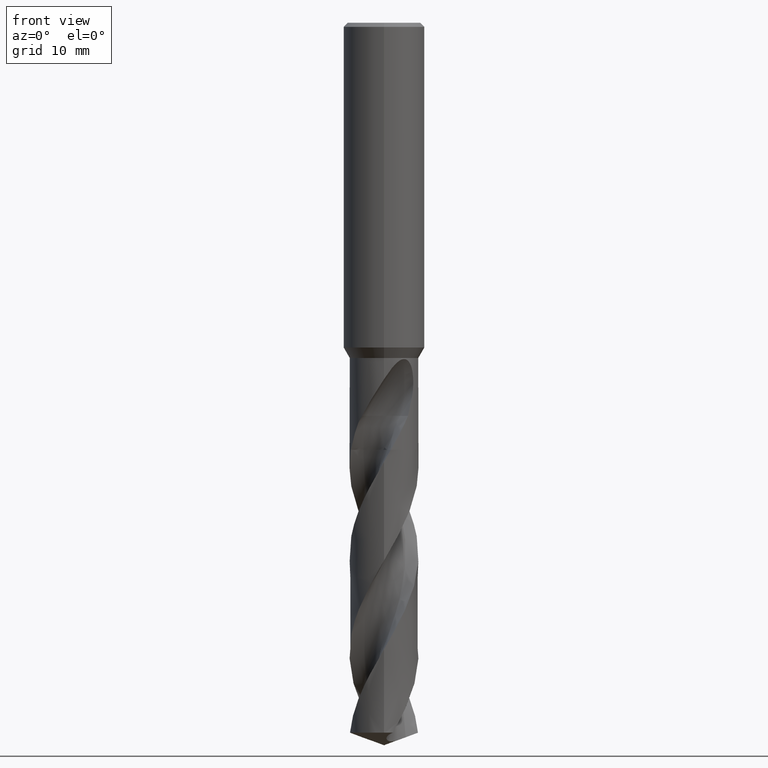
[diagram: clean part render]
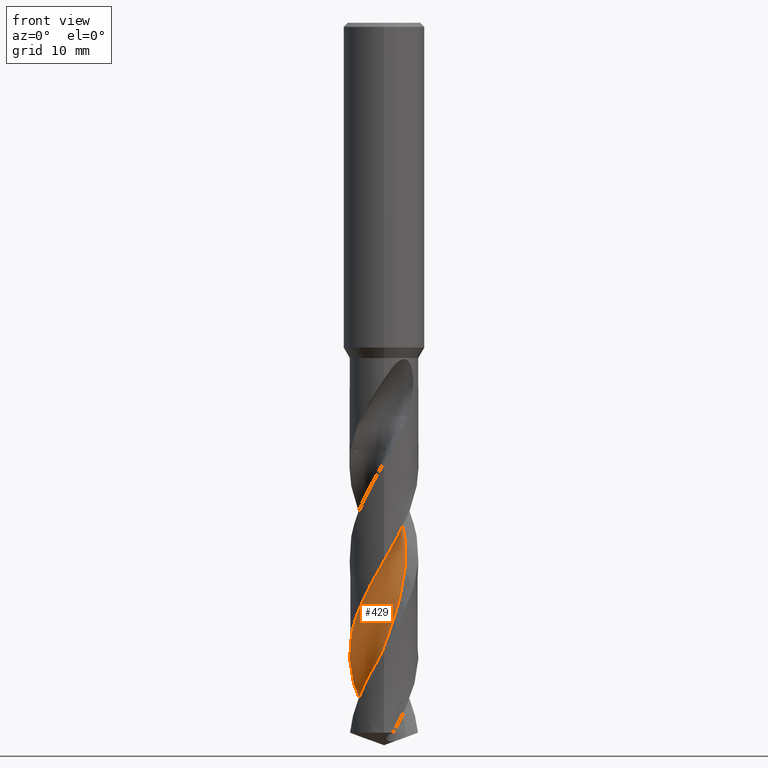
[diagram: same view with one face highlighted and labeled with its STEP entity id]
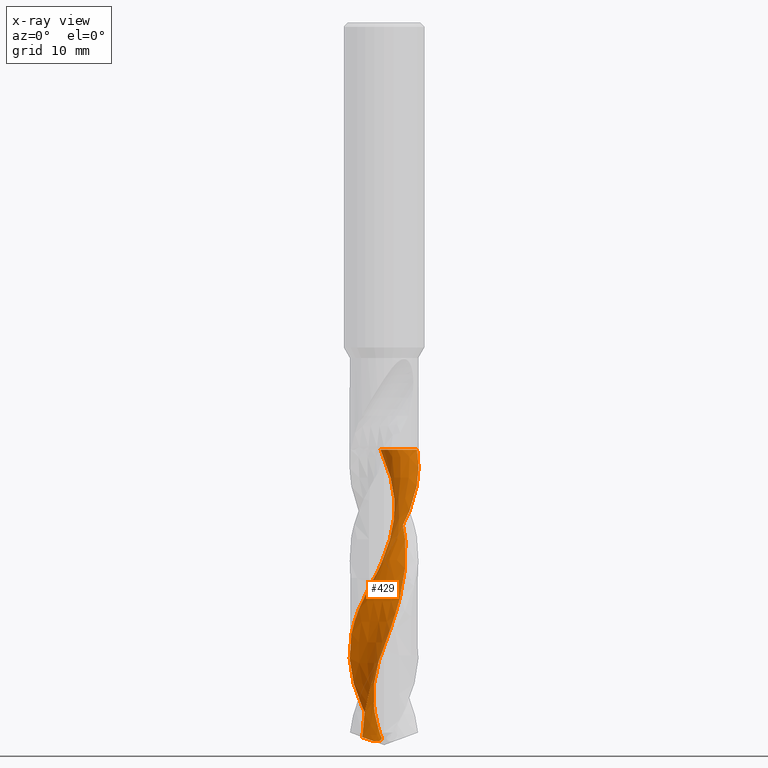
[diagram: x-ray of the same camera — body ghosted, the highlighted face saturated]
A machine part, front view. The second image highlights one B-rep face of the part: STEP entity #429.
The next image is the same camera in x-ray: the body ghosted, the highlighted face saturated — about 0% of this face is hidden behind the body in this view.
In plain terms, the highlighted face is a freeform B-spline surface patch.
Its self-contained STEP definition (entity closure, byte-faithful):
#331=VERTEX_POINT('',#857);
#411=EDGE_CURVE('',#673,#331,#944,.T.);
#429=ADVANCED_FACE('',(#963),#964,.F.);
#437=VERTEX_POINT('',#972);
#531=EDGE_CURVE('',#751,#673,#1073,.T.);
#553=EDGE_CURVE('',#437,#751,#1095,.T.);
#583=EDGE_CURVE('',#331,#681,#1128,.T.);
#673=VERTEX_POINT('',#1226);
#681=VERTEX_POINT('',#1235);
#733=EDGE_CURVE('',#681,#437,#1292,.T.);
#751=VERTEX_POINT('',#1313);
#857=CARTESIAN_POINT('',(4.07639185603204,1.20194825138327,-52.605));
#944=B_SPLINE_CURVE_WITH_KNOTS('',3,(#2885,#2886,#2887,#2888,#2889,#2890,#2891,#2892,#2893,#2894,#2895,#2896,#2897,#2898,#2899,#2900,#2901,#2902,#2903,#2904,#2905,#2906,#2907,#2908,#2909,#2910,#2911,#2912,#2913,#2914,#2915,#2916,#2917,#2918,#2919,#2920,#2921,#2922,#2923,#2924,#2925,#2926,#2927,#2928,#2929,#2930,#2931,#2932,#2933,#2934,#2935,#2936,#2937,#2938,#2939,#2940,#2941,#2942,#2943,#2944),.UNSPECIFIED.,.F.,.F.,(4,2,2,2,2,2,2,2,2,2,2,2,2,2,2,2,2,2,2,2,2,2,2,2,2,2,2,2,2,4),(0.0,2.29751554083711,3.85419746689243,4.21568735410119,5.77898189527141,7.88889528178311,9.26072049399772,10.3614421613478,11.6755371816784,12.3141242453152,13.6339079769723,15.3855285037657,16.3615986594724,18.5282114127292,18.931263613634,21.2017948752059,22.2120860155474,24.593745108157,24.7835131242692,27.0979653894139,28.1412221380216,29.4965104685312,31.9259406108355,33.2056314217341,34.1098931357135,35.4881716256427,36.1111966361216,37.1986376450806,38.8373059644024,40.4686052978695),.UNSPECIFIED.);
#963=FACE_OUTER_BOUND('',#3041,.T.);
#964=B_SPLINE_SURFACE_WITH_KNOTS('',3,3,((#3042,#3043,#3044,#3045,#3046,#3047,#3048,#3049,#3050,#3051,#3052,#3053,#3054,#3055,#3056,#3057,#3058,#3059,#3060,#3061,#3062,#3063,#3064,#3065,#3066,#3067,#3068,#3069,#3070,#3071,#3072,#3073,#3074,#3075,#3076,#3077,#3078,#3079,#3080,#3081,#3082,#3083,#3084,#3085,#3086,#3087,#3088,#3089,#3090,#3091,#3092,#3093,#3094),(#3095,#3096,#3097,#3098,#3099,#3100,#3101,#3102,#3103,#3104,#3105,#3106,#3107,#3108,#3109,#3110,#3111,#3112,#3113,#3114,#3115,#3116,#3117,#3118,#3119,#3120,#3121,#3122,#3123,#3124,#3125,#3126,#3127,#3128,#3129,#3130,#3131,#3132,#3133,#3134,#3135,#3136,#3137,#3138,#3139,#3140,#3141,#3142,#3143,#3144,#3145,#3146,#3147),(#3148,#3149,#3150,#3151,#3152,#3153,#3154,#3155,#3156,#3157,#3158,#3159,#3160,#3161,#3162,#3163,#3164,#3165,#3166,#3167,#3168,#3169,#3170,#3171,#3172,#3173,#3174,#3175,#3176,#3177,#3178,#3179,#3180,#3181,#3182,#3183,#3184,#3185,#3186,#3187,#3188,#3189,#3190,#3191,#3192,#3193,#3194,#3195,#3196,#3197,#3198,#3199,#3200),(#3201,#3202,#3203,#3204,#3205,#3206,#3207,#3208,#3209,#3210,#3211,#3212,#3213,#3214,#3215,#3216,#3217,#3218,#3219,#3220,#3221,#3222,#3223,#3224,#3225,#3226,#3227,#3228,#3229,#3230,#3231,#3232,#3233,#3234,#3235,#3236,#3237,#3238,#3239,#3240,#3241,#3242,#3243,#3244,#3245,#3246,#3247,#3248,#3249,#3250,#3251,#3252,#3253),(#3254,#3255,#3256,#3257,#3258,#3259,#3260,#3261,#3262,#3263,#3264,#3265,#3266,#3267,#3268,#3269,#3270,#3271,#3272,#3273,#3274,#3275,#3276,#3277,#3278,#3279,#3280,#3281,#3282,#3283,#3284,#3285,#3286,#3287,#3288,#3289,#3290,#3291,#3292,#3293,#3294,#3295,#3296,#3297,#3298,#3299,#3300,#3301,#3302,#3303,#3304,#3305,#3306),(#3307,#3308,#3309,#3310,#3311,#3312,#3313,#3314,#3315,#3316,#3317,#3318,#3319,#3320,#3321,#3322,#3323,#3324,#3325,#3326,#3327,#3328,#3329,#3330,#3331,#3332,#3333,#3334,#3335,#3336,#3337,#3338,#3339,#3340,#3341,#3342,#3343,#3344,#3345,#3346,#3347,#3348,#3349,#3350,#3351,#3352,#3353,#3354,#3355,#3356,#3357,#3358,#3359),(#3360,#3361,#3362,#3363,#3364,#3365,#3366,#3367,#3368,#3369,#3370,#3371,#3372,#3373,#3374,#3375,#3376,#3377,#3378,#3379,#3380,#3381,#3382,#3383,#3384,#3385,#3386,#3387,#3388,#3389,#3390,#3391,#3392,#3393,#3394,#3395,#3396,#3397,#3398,#3399,#3400,#3401,#3402,#3403,#3404,#3405,#3406,#3407,#3408,#3409,#3410,#3411,#3412),(#3413,#3414,#3415,#3416,#3417,#3418,#3419,#3420,#3421,#3422,#3423,#3424,#3425,#3426,#3427,#3428,#3429,#3430,#3431,#3432,#3433,#3434,#3435,#3436,#3437,#3438,#3439,#3440,#3441,#3442,#3443,#3444,#3445,#3446,#3447,#3448,#3449,#3450,#3451,#3452,#3453,#3454,#3455,#3456,#3457,#3458,#3459,#3460,#3461,#3462,#3463,#3464,#3465),(#3466,#3467,#3468,#3469,#3470,#3471,#3472,#3473,#3474,#3475,#3476,#3477,#3478,#3479,#3480,#3481,#3482,#3483,#3484,#3485,#3486,#3487,#3488,#3489,#3490,#3491,#3492,#3493,#3494,#3495,#3496,#3497,#3498,#3499,#3500,#3501,#3502,#3503,#3504,#3505,#3506,#3507,#3508,#3509,#3510,#3511,#3512,#3513,#3514,#3515,#3516,#3517,#3518),(#3519,#3520,#3521,#3522,#3523,#3524,#3525,#3526,#3527,#3528,#3529,#3530,#3531,#3532,#3533,#3534,#3535,#3536,#3537,#3538,#3539,#3540,#3541,#3542,#3543,#3544,#3545,#3546,#3547,#3548,#3549,#3550,#3551,#3552,#3553,#3554,#3555,#3556,#3557,#3558,#3559,#3560,#3561,#3562,#3563,#3564,#3565,#3566,#3567,#3568,#3569,#3570,#3571),(#3572,#3573,#3574,#3575,#3576,#3577,#3578,#3579,#3580,#3581,#3582,#3583,#3584,#3585,#3586,#3587,#3588,#3589,#3590,#3591,#3592,#3593,#3594,#3595,#3596,#3597,#3598,#3599,#3600,#3601,#3602,#3603,#3604,#3605,#3606,#3607,#3608,#3609,#3610,#3611,#3612,#3613,#3614,#3615,#3616,#3617,#3618,#3619,#3620,#3621,#3622,#3623,#3624)),.UNSPECIFIED.,.F.,.F.,.F.,(4,1,1,1,1,1,1,1,4),(4,1,2,2,2,2,1,2,1,2,1,2,1,2,1,2,1,2,1,2,1,2,1,2,1,2,1,2,1,2,1,2,1,4),(-4.93715282838235E-017,0.392701182115647,0.785402364231295,1.17810354634694,1.57080472846259,1.96350591057824,2.35620709269388,2.74890827480953,3.14160945692518),(0.0,0.815275673980478,1.63055134796096,3.26110269592191,4.89165404388287,6.52220539184382,8.15275673980478,9.78330808776573,11.4138594357267,13.0444107836876,14.6749621316486,16.3055134796096,17.9360648275705,19.5666161755315,21.1971675234924,22.8277188714534,24.4582702194143,26.0888215673753,27.7193729153362,29.3499242632972,30.9804756112581,32.6110269592191,34.2415783071801,35.872129655141,37.502681003102,39.1332323510629,40.7637836990239,42.3943350469848,44.0248863949458,45.6554377429067,47.2859890908677,48.9165404388286,50.5470917867896,52.1776431347506),.UNSPECIFIED.);
#972=CARTESIAN_POINT('',(-2.6717971082152,-0.138602749724818,-88.0262377526549));
#1073=B_SPLINE_CURVE_WITH_KNOTS('',3,(#4800,#4801,#4802,#4803,#4804,#4805,#4806,#4807,#4808,#4809,#4810,#4811,#4812,#4813,#4814,#4815,#4816,#4817,#4818,#4819,#4820,#4821,#4822,#4823,#4824,#4825,#4826,#4827,#4828,#4829,#4830,#4831,#4832,#4833,#4834,#4835,#4836,#4837,#4838,#4839,#4840,#4841,#4842,#4843,#4844,#4845,#4846,#4847,#4848,#4849,#4850,#4851,#4852,#4853,#4854,#4855,#4856,#4857,#4858,#4859),.UNSPECIFIED.,.F.,.F.,(4,2,2,2,2,2,2,2,2,2,2,2,2,2,2,2,2,2,2,2,2,2,2,2,2,2,2,2,2,4),(0.0,2.29751554083711,3.85419746689243,4.21568735410119,5.77898189527141,7.88889528178311,9.26072049399772,10.3614421613478,11.6755371816784,12.3141242453152,13.6339079769723,15.3855285037657,16.3615986594724,18.5282114127292,18.931263613634,21.2017948752059,22.2120860155474,24.593745108157,24.7835131242692,27.0979653894139,28.1412221380216,29.4965104685312,31.9259406108355,33.2056314217341,34.1098931357135,35.4881716256427,36.1111966361216,37.1986376450806,38.8373059644024,40.4686052978695),.UNSPECIFIED.);
#1095=B_SPLINE_CURVE_WITH_KNOTS('',3,(#4946,#4947,#4948,#4949,#4950,#4951,#4952,#4953,#4954,#4955,#4956,#4957,#4958,#4959,#4960,#4961,#4962,#4963,#4964,#4965),.UNSPECIFIED.,.F.,.F.,(4,2,2,2,2,2,2,2,2,4),(0.0,1.76841711961089,2.97238221567187,4.11861401664554,5.40423584894147,6.79944650857478,8.3756572261223,10.1374607982211,11.1985623902722,12.2592229806502),.UNSPECIFIED.);
#1128=B_SPLINE_CURVE_WITH_KNOTS('',3,(#5138,#5139,#5140,#5141,#5142,#5143,#5144,#5145,#5146,#5147,#5148,#5149,#5150,#5151,#5152,#5153,#5154,#5155,#5156,#5157),.UNSPECIFIED.,.F.,.F.,(4,2,2,2,2,2,2,2,2,4),(-8.92554476637759,-8.33529420912808,-7.74494474639423,-6.63765661109346,-5.5304814986396,-4.4238278081354,-3.31780039597833,-2.21213484421377,-1.10634482706692,-0.0),.UNSPECIFIED.);
#1226=CARTESIAN_POINT('',(-2.26836955454682E-010,-4.24993918034887,-66.2555765590413));
#1235=CARTESIAN_POINT('',(-0.42546679125039,2.63978069602382,-52.605));
#1292=B_SPLINE_CURVE_WITH_KNOTS('',3,(#6543,#6544,#6545,#6546,#6547,#6548,#6549,#6550,#6551,#6552,#6553,#6554,#6555,#6556,#6557,#6558,#6559,#6560,#6561,#6562,#6563,#6564,#6565,#6566,#6567,#6568,#6569,#6570,#6571,#6572,#6573,#6574,#6575,#6576,#6577,#6578,#6579,#6580,#6581,#6582,#6583,#6584,#6585,#6586,#6587,#6588,#6589,#6590,#6591,#6592,#6593,#6594,#6595),.UNSPECIFIED.,.F.,.F.,(4,1,2,2,2,2,1,2,1,2,1,2,1,2,1,2,1,2,1,2,1,2,1,2,1,2,1,2,1,2,1,2,1,4),(0.0,0.815275673980478,1.63055134796096,3.26110269592191,4.89165404388287,6.52220539184382,8.15275673980478,9.78330808776573,11.4138594357267,13.0444107836876,14.6749621316486,16.3055134796096,17.9360648275705,19.5666161755315,21.1971675234924,22.8277188714534,24.4582702194143,26.0888215673753,27.7193729153362,29.3499242632972,30.9804756112581,32.6110269592191,34.2415783071801,35.872129655141,37.502681003102,39.1332323510629,40.7637836990239,42.3943350469848,44.0248863949458,45.6554377429067,47.2859890908677,48.9165404388286,50.5470917867896,52.1776431347506),.UNSPECIFIED.);
#1313=CARTESIAN_POINT('',(-1.07965947315376,4.11057604503667,-87.4531265043686));
#2885=CARTESIAN_POINT('',(-1.07965947315377,4.11057604503668,-87.4531265043686));
#2886=CARTESIAN_POINT('',(-1.45174821540029,4.01284346306116,-86.7909279395516));
#2887=CARTESIAN_POINT('',(-1.80789720749949,3.86535591203155,-86.1239222625401));
#2888=CARTESIAN_POINT('',(-2.36366395008136,3.54161228869324,-85.0127868188305));
#2889=CARTESIAN_POINT('',(-2.57544411727605,3.39068036879842,-84.5668206989185));
#2890=CARTESIAN_POINT('',(-2.81757089530179,3.1823472369855,-84.0135000528124));
#2891=CARTESIAN_POINT('',(-2.86229608888944,3.14217858294309,-83.9091381160204));
#2892=CARTESIAN_POINT('',(-3.09578064614456,2.92336897527639,-83.3544111718478));
#2893=CARTESIAN_POINT('',(-3.26902914231356,2.72834477334871,-82.9066537715575));
#2894=CARTESIAN_POINT('',(-3.63215237000434,2.23467001343022,-81.8495888216711));
#2895=CARTESIAN_POINT('',(-3.80452796743253,1.92654388259064,-81.2404306722604));
#2896=CARTESIAN_POINT('',(-4.02309375105071,1.38899762391659,-80.2380761221371));
#2897=CARTESIAN_POINT('',(-4.09196518779923,1.17063348187545,-79.8450552863642));
#2898=CARTESIAN_POINT('',(-4.18384176020368,0.769027044378222,-79.1332618362986));
#2899=CARTESIAN_POINT('',(-4.21306661354714,0.58806488465601,-78.8152596751534));
#2900=CARTESIAN_POINT('',(-4.25139941371249,0.188591878440612,-78.1204006291273));
#2901=CARTESIAN_POINT('',(-4.25550120577501,-0.0303512885441031,-77.7439982017199));
#2902=CARTESIAN_POINT('',(-4.23644004643717,-0.355173567840284,-77.1827168164323));
#2903=CARTESIAN_POINT('',(-4.2262242779864,-0.461041046334476,-76.9993095682784));
#2904=CARTESIAN_POINT('',(-4.18281013718088,-0.78392267514231,-76.4360805923125));
#2905=CARTESIAN_POINT('',(-4.13677300569536,-0.998785679684207,-76.0549719639135));
#2906=CARTESIAN_POINT('',(-3.99132167475004,-1.48880084290261,-75.1715773742618));
#2907=CARTESIAN_POINT('',(-3.8798706205041,-1.75886223253623,-74.6716062381372));
#2908=CARTESIAN_POINT('',(-3.66483428129095,-2.15812227417959,-73.8869749455761));
#2909=CARTESIAN_POINT('',(-3.57986507885418,-2.29631561220489,-73.6052834727034));
#2910=CARTESIAN_POINT('',(-3.28116618419685,-2.72504255547687,-72.7012042206637));
#2911=CARTESIAN_POINT('',(-3.03867675303061,-2.99298621714471,-72.0852862476541));
#2912=CARTESIAN_POINT('',(-2.71472276120749,-3.27060629479068,-71.345994543298));
#2913=CARTESIAN_POINT('',(-2.66297459449134,-3.31287341635119,-71.2299161231605));
#2914=CARTESIAN_POINT('',(-2.31339401898704,-3.58494317596426,-70.4615692158892));
#2915=CARTESIAN_POINT('',(-1.98698078340672,-3.77571007243621,-69.8175331043567));
#2916=CARTESIAN_POINT('',(-1.48459780194779,-3.98574113438408,-68.8758575572015));
#2917=CARTESIAN_POINT('',(-1.32642807824763,-4.04112463553076,-68.5848806412349));
#2918=CARTESIAN_POINT('',(-0.785581616881337,-4.19533262683817,-67.6114852597272));
#2919=CARTESIAN_POINT('',(-0.392948727612279,-4.25003749068145,-66.9374408138197));
#2920=CARTESIAN_POINT('',(0.0324333921962908,-4.24993120390221,-66.1992965358443));
#2921=CARTESIAN_POINT('',(0.0637826233712689,-4.24957629549918,-66.1448341183356));
#2922=CARTESIAN_POINT('',(0.478169798913058,-4.24029099913847,-65.4256162903238));
#2923=CARTESIAN_POINT('',(0.858522584035596,-4.17998039918659,-64.769837514228));
#2924=CARTESIAN_POINT('',(1.39173566542239,-4.01932010997907,-63.8068643109026));
#2925=CARTESIAN_POINT('',(1.55397640204136,-3.95941352993606,-63.5066085460996));
#2926=CARTESIAN_POINT('',(1.91772710060047,-3.79929631128532,-62.8188287603556));
#2927=CARTESIAN_POINT('',(2.11597537155528,-3.69258541751421,-62.432068620035));
#2928=CARTESIAN_POINT('',(2.6439782510702,-3.3517145991774,-61.3477754608103));
#2929=CARTESIAN_POINT('',(2.94991587841438,-3.08586603229305,-60.6502469780861));
#2930=CARTESIAN_POINT('',(3.35289629641613,-2.62012538672386,-59.5877096024371));
#2931=CARTESIAN_POINT('',(3.47947752291628,-2.44947530650932,-59.2225141427343));
#2932=CARTESIAN_POINT('',(3.67262452599703,-2.14383664775585,-58.5962776478117));
#2933=CARTESIAN_POINT('',(3.74590052248074,-2.01308628725726,-58.3359577221301));
#2934=CARTESIAN_POINT('',(3.91325037763994,-1.67347269296924,-57.680996966137));
#2935=CARTESIAN_POINT('',(3.99768900317102,-1.46038708950146,-57.2875133853822));
#2936=CARTESIAN_POINT('',(4.09484536626004,-1.14224158241254,-56.7137566860723));
#2937=CARTESIAN_POINT('',(4.1214277499531,-1.0422361723188,-56.5352648930405));
#2938=CARTESIAN_POINT('',(4.1842700013343,-0.765601633192505,-56.0445263226787));
#2939=CARTESIAN_POINT('',(4.21298164375211,-0.587436705427127,-55.7316129268938));
#2940=CARTESIAN_POINT('',(4.25639154098854,-0.137100435596134,-54.9491790742406));
#2941=CARTESIAN_POINT('',(4.2564343747931,0.135342633488371,-54.4819698607664));
#2942=CARTESIAN_POINT('',(4.20464187866408,0.675168323802348,-53.5441748432883));
#2943=CARTESIAN_POINT('',(4.15317863443514,0.941553726202778,-53.072699199337));
#2944=CARTESIAN_POINT('',(4.07636418007444,1.20204209544953,-52.6048314383729));
#3041=EDGE_LOOP('',(#8491,#8492,#8493,#8494,#8495));
#3042=CARTESIAN_POINT('',(2.00346921093415,6.11180254093415,-48.431));
#3043=CARTESIAN_POINT('',(2.17417155482567,6.10472371266009,-48.6421303646466));
#3044=CARTESIAN_POINT('',(2.51931896833507,6.05550061057624,-49.0665063093452));
#3045=CARTESIAN_POINT('',(2.86403537245786,5.91651373555004,-49.4921339590899));
#3046=CARTESIAN_POINT('',(3.36590789861316,5.62692154267848,-50.1249646638831));
#3047=CARTESIAN_POINT('',(3.68113462564363,5.41198828991928,-50.5453433759274));
#3048=CARTESIAN_POINT('',(4.27661774459947,4.95073323245226,-51.3900540724617));
#3049=CARTESIAN_POINT('',(4.55522659976782,4.69708522134004,-51.8127814370685));
#3050=CARTESIAN_POINT('',(5.06620296919371,4.14846629084025,-52.6597470865309));
#3051=CARTESIAN_POINT('',(5.29750747035719,3.85103136989371,-53.0827878530594));
#3052=CARTESIAN_POINT('',(5.70184974765678,3.21529139198177,-53.9268511083889));
#3053=CARTESIAN_POINT('',(6.0536468398391,2.54761863929687,-54.7719070325167));
#3054=CARTESIAN_POINT('',(6.28645678892015,1.83019418210633,-55.6179878255574));
#3055=CARTESIAN_POINT('',(6.4530742265657,1.09617784554119,-56.4631491604488));
#3056=CARTESIAN_POINT('',(6.55865836006758,0.349620528270284,-57.3081659736928));
#3057=CARTESIAN_POINT('',(6.53544839927712,-0.404418569317616,-58.1537110215097));
#3058=CARTESIAN_POINT('',(6.44363773863688,-1.15176921396794,-58.9990504895139));
#3059=CARTESIAN_POINT('',(6.29007669897986,-1.89010610651126,-59.8441555488902));
#3060=CARTESIAN_POINT('',(6.01299420298174,-2.59174516789554,-60.689683604925));
#3061=CARTESIAN_POINT('',(5.67385047039499,-3.26392350035849,-61.5349972125961));
#3062=CARTESIAN_POINT('',(5.27964638329126,-3.90676941941254,-62.3800945633811));
#3063=CARTESIAN_POINT('',(4.78155203571877,-4.47330736869164,-63.2256275374721));
#3064=CARTESIAN_POINT('',(4.23497279165605,-4.99110024001101,-64.0709403640888));
#3065=CARTESIAN_POINT('',(3.64650743080254,-5.46265779926839,-64.9160344246544));
#3066=CARTESIAN_POINT('',(2.98610791493731,-5.82726455615437,-65.7615638776279));
#3067=CARTESIAN_POINT('',(2.29658102758389,-6.1296055023952,-66.6068753131999));
#3068=CARTESIAN_POINT('',(1.58327591659803,-6.37426524557142,-67.451970136236));
#3069=CARTESIAN_POINT('',(0.838454529199569,-6.49392760403628,-68.2975013704605));
#3070=CARTESIAN_POINT('',(0.0872879596252351,-6.54512793764515,-69.1428132759511));
#3071=CARTESIAN_POINT('',(-0.66673320795834,-6.53400443957569,-69.9879073213845));
#3072=CARTESIAN_POINT('',(-1.40811315066564,-6.39460520619899,-70.8334394223202));
#3073=CARTESIAN_POINT('',(-2.13229910712854,-6.18864413247511,-71.6787548679569));
#3074=CARTESIAN_POINT('',(-2.83808444324445,-5.92306981678,-72.5238511481541));
#3075=CARTESIAN_POINT('',(-3.48857599996096,-5.54106612941289,-73.3693828635691));
#3076=CARTESIAN_POINT('',(-4.10037140090831,-5.10224691459312,-74.2146970108278));
#3077=CARTESIAN_POINT('',(-4.67468577058485,-4.6135564494539,-75.0597929190843));
#3078=CARTESIAN_POINT('',(-5.15757929438709,-4.03400908605683,-75.905323771053));
#3079=CARTESIAN_POINT('',(-5.58483638011616,-3.41408731164205,-76.7506355989576));
#3080=CARTESIAN_POINT('',(-5.9599452264858,-2.75990704677742,-77.5957280227125));
#3081=CARTESIAN_POINT('',(-6.21826927099853,-2.05113967479365,-78.4412540508285));
#3082=CARTESIAN_POINT('',(-6.41057110417117,-1.32319339179934,-79.286561472667));
#3083=CARTESIAN_POINT('',(-6.54222535522317,-0.580660718995892,-80.1316643655491));
#3084=CARTESIAN_POINT('',(-6.54551212882607,0.173702141478676,-80.9772168751367));
#3085=CARTESIAN_POINT('',(-6.48015359510846,0.923745701632406,-81.8225480022211));
#3086=CARTESIAN_POINT('',(-6.35276027636915,1.66696028998699,-82.6676077458653));
#3087=CARTESIAN_POINT('',(-6.1007249469224,2.3779453934104,-83.5130780243537));
#3088=CARTESIAN_POINT('',(-5.78573395158556,3.06180469722396,-84.3583688870457));
#3089=CARTESIAN_POINT('',(-5.41455514436097,3.71843819798765,-85.2036320798877));
#3090=CARTESIAN_POINT('',(-4.9360623559377,4.30203683316819,-86.0493728907179));
#3091=CARTESIAN_POINT('',(-4.40685212315545,4.83794229143427,-86.8947144893249));
#3092=CARTESIAN_POINT('',(-3.83533943512552,5.32899861888233,-87.7393021860755));
#3093=CARTESIAN_POINT('',(-3.19140416880305,5.71830189034055,-88.5841009893223));
#3094=CARTESIAN_POINT('',(-2.85456060537199,5.88362955295315,-89.0065620738592));
#3095=CARTESIAN_POINT('',(2.26571321039674,5.84953672274002,-48.431));
#3096=CARTESIAN_POINT('',(2.43676115468351,5.84280346642532,-48.6421402022816));
#3097=CARTESIAN_POINT('',(2.77798098182372,5.78952833603665,-49.0667651144074));
#3098=CARTESIAN_POINT('',(3.10875414693507,5.63752649692869,-49.4927683252757));
#3099=CARTESIAN_POINT('',(3.58068156139604,5.32345472313563,-50.125408613834));
#3100=CARTESIAN_POINT('',(3.87613841005344,5.09577418652622,-50.5454854045823));
#3101=CARTESIAN_POINT('',(4.43376616097938,4.61409981802908,-51.3901231030133));
#3102=CARTESIAN_POINT('',(4.6930610072979,4.3521350755857,-51.8128563788694));
#3103=CARTESIAN_POINT('',(5.16456020214913,3.79025609523173,-52.6600488203961));
#3104=CARTESIAN_POINT('',(5.37522622275308,3.48773247814512,-53.083144035462));
#3105=CARTESIAN_POINT('',(5.73666364999651,2.84540735346827,-53.9270343499942));
#3106=CARTESIAN_POINT('',(6.04586481662635,2.1750053164594,-54.7720539756024));
#3107=CARTESIAN_POINT('',(6.23628343615774,1.46208957595535,-55.6182415876727));
#3108=CARTESIAN_POINT('',(6.36066536681263,0.736346208211028,-56.4633819052778));
#3109=CARTESIAN_POINT('',(6.42535396125224,0.00158579813003384,-57.3083575430119));
#3110=CARTESIAN_POINT('',(6.36379164009195,-0.733894082212746,-58.1539347868829));
#3111=CARTESIAN_POINT('',(6.23496022391194,-1.45913491764332,-58.9992778946818));
#3112=CARTESIAN_POINT('',(6.04685416441646,-2.17249504416443,-59.8443540357829));
#3113=CARTESIAN_POINT('',(5.73996129153782,-2.84368281556477,-60.6899119680059));
#3114=CARTESIAN_POINT('',(5.37348067921859,-3.48254958965397,-61.535225651506));
#3115=CARTESIAN_POINT('',(4.95523101028146,-4.0902213289583,-62.3802930097902));
#3116=CARTESIAN_POINT('',(4.43938624285798,-4.61802171126792,-63.2258565403752));
#3117=CARTESIAN_POINT('',(3.87834983565513,-5.0952134950408,-64.0711693164393));
#3118=CARTESIAN_POINT('',(3.27915623204131,-5.52553201991759,-64.9162329436835));
#3119=CARTESIAN_POINT('',(2.6151593208974,-5.8476798391379,-65.7617924354395));
#3120=CARTESIAN_POINT('',(1.92576432554638,-6.10692408781427,-66.6071036688007));
#3121=CARTESIAN_POINT('',(1.21631571459107,-6.30914727846934,-67.4521681348611));
#3122=CARTESIAN_POINT('',(0.482474721475911,-6.38763506654588,-68.2977296715814));
#3123=CARTESIAN_POINT('',(-0.253985216847095,-6.39832135172484,-69.1430414254139));
#3124=CARTESIAN_POINT('',(-0.990018082730819,-6.34856692245955,-69.9881050063173));
#3125=CARTESIAN_POINT('',(-1.70713429323788,-6.17413742544859,-70.8336675303158));
#3126=CARTESIAN_POINT('',(-2.40377455570903,-5.93502908331697,-71.6789833298214));
#3127=CARTESIAN_POINT('',(-3.07956319869478,-5.63918937199244,-72.5240494782563));
#3128=CARTESIAN_POINT('',(-3.69537120793279,-5.23243141535774,-73.3696115704901));
#3129=CARTESIAN_POINT('',(-4.27003216663016,-4.77174018175501,-74.2149258188542));
#3130=CARTESIAN_POINT('',(-4.80588066610888,-4.26471851043262,-75.059991452852));
#3131=CARTESIAN_POINT('',(-5.24776199895846,-3.67361109626236,-75.9055526043774));
#3132=CARTESIAN_POINT('',(-5.63267529380681,-3.04567056361341,-76.7508643817293));
#3133=CARTESIAN_POINT('',(-5.9653833757554,-2.3872535492074,-77.5959264457468));
#3134=CARTESIAN_POINT('',(-6.18119845786026,-1.68148376804445,-78.4414819721144));
#3135=CARTESIAN_POINT('',(-6.33093609036663,-0.960318997471179,-79.2867880290299));
#3136=CARTESIAN_POINT('',(-6.42125695047495,-0.228145879063354,-80.1318606029466));
#3137=CARTESIAN_POINT('',(-6.38555726877951,0.509014275528845,-80.9774466664834));
#3138=CARTESIAN_POINT('',(-6.28243724340168,1.23827369211323,-81.822782343311));
#3139=CARTESIAN_POINT('',(-6.11964877589848,1.95775064516617,-82.6678108461268));
#3140=CARTESIAN_POINT('',(-5.83676110341547,2.63936825023482,-83.5133011569665));
#3141=CARTESIAN_POINT('',(-5.49329465509041,3.29092893914407,-84.3585796847989));
#3142=CARTESIAN_POINT('',(-5.09683927576718,3.91327035109105,-85.2038190819115));
#3143=CARTESIAN_POINT('',(-4.59918077225667,4.45867366765864,-86.0496170705151));
#3144=CARTESIAN_POINT('',(-4.05402999572884,4.95430660567207,-86.8949824288925));
#3145=CARTESIAN_POINT('',(-3.47040768429757,5.40453372984781,-87.739511185005));
#3146=CARTESIAN_POINT('',(-2.82146360135094,5.75213257017732,-88.5843078700509));
#3147=CARTESIAN_POINT('',(-2.48389505844506,5.89636846338398,-89.0067791662338));
#3148=CARTESIAN_POINT('',(2.68579716556185,5.22083064584983,-48.431));
#3149=CARTESIAN_POINT('',(2.85767359210364,5.21465095717637,-48.6421563806504));
#3150=CARTESIAN_POINT('',(3.1894285401922,5.15483535491535,-49.0671907653456));
#3151=CARTESIAN_POINT('',(3.48714574463424,4.98235346324749,-49.4938116544047));
#3152=CARTESIAN_POINT('',(3.88946078260027,4.63124104196138,-50.1261387658367));
#3153=CARTESIAN_POINT('',(4.14031699191343,4.38593323599747,-50.5457189998604));
#3154=CARTESIAN_POINT('',(4.61412992709556,3.878482563561,-51.390236632085));
#3155=CARTESIAN_POINT('',(4.83149763146533,3.60756833315115,-51.8129796382014));
#3156=CARTESIAN_POINT('',(5.21878607342017,3.03487343148835,-52.6605450710964));
#3157=CARTESIAN_POINT('',(5.38616023395299,2.7303816778404,-53.0837298267335));
#3158=CARTESIAN_POINT('',(5.65918734724282,2.09195082708439,-53.9273357373047));
#3159=CARTESIAN_POINT('',(5.88212927188125,1.4330302203708,-54.7722956393292));
#3160=CARTESIAN_POINT('',(5.9895760227057,0.745987476632542,-55.6186589511538));
#3161=CARTESIAN_POINT('',(6.03279458694127,0.0535820875022016,-56.4637646888743));
#3162=CARTESIAN_POINT('',(6.02040052332497,-0.641326779187969,-57.3086726167829));
#3163=CARTESIAN_POINT('',(5.88952997519841,-1.32444471899941,-58.1543028073887));
#3164=CARTESIAN_POINT('',(5.69546487203837,-1.99075343137375,-58.9996519042585));
#3165=CARTESIAN_POINT('',(5.44821570382091,-2.64043324058626,-59.8446804811944));
#3166=CARTESIAN_POINT('',(5.09382398447468,-3.2388767542069,-60.6902875533135));
#3167=CARTESIAN_POINT('',(4.68592791976667,-3.80026355815756,-61.5356013581935));
#3168=CARTESIAN_POINT('',(4.2335847227143,-4.32803969245333,-62.3806193966171));
#3169=CARTESIAN_POINT('',(3.69765108588755,-4.77132254262755,-63.2262331650814));
#3170=CARTESIAN_POINT('',(3.12385203761885,-5.16158018308919,-64.0715458804846));
#3171=CARTESIAN_POINT('',(2.51960573171052,-5.50517174728462,-64.9165594147697));
#3172=CARTESIAN_POINT('',(1.86529990819174,-5.74098903766975,-65.7621683855456));
#3173=CARTESIAN_POINT('',(1.19330664050195,-5.91411046688888,-66.6074791939419));
#3174=CARTESIAN_POINT('',(0.508444888387791,-6.03301202397478,-67.4524937800963));
#3175=CARTESIAN_POINT('',(-0.187066321608215,-6.03353452160019,-68.2981051968972));
#3176=CARTESIAN_POINT('',(-0.878008221170562,-5.96905803887117,-69.1434166141639));
#3177=CARTESIAN_POINT('',(-1.56270993509651,-5.8492113330199,-69.9884301427586));
#3178=CARTESIAN_POINT('',(-2.21737863510929,-5.61438485032942,-70.8340427210956));
#3179=CARTESIAN_POINT('',(-2.8457576559611,-5.31994985063005,-71.6793590492581));
#3180=CARTESIAN_POINT('',(-3.44953007797233,-4.97552070067322,-72.5243756785463));
#3181=CARTESIAN_POINT('',(-3.98614173542348,-4.53305699622736,-73.3699877238976));
#3182=CARTESIAN_POINT('',(-4.47785173535333,-4.04339796520917,-74.2153021300401));
#3183=CARTESIAN_POINT('',(-4.92949503878575,-3.51501808521754,-75.0603179934052));
#3184=CARTESIAN_POINT('',(-5.28477223962586,-2.91710448018966,-75.9059289326279));
#3185=CARTESIAN_POINT('',(-5.58182702590477,-2.28996840290436,-76.7512406844334));
#3186=CARTESIAN_POINT('',(-5.82806661845872,-1.6399409232711,-77.5962527668533));
#3187=CARTESIAN_POINT('',(-5.96007372468513,-0.957069323852754,-78.4418568419502));
#3188=CARTESIAN_POINT('',(-6.02739762008247,-0.266390956135779,-79.2871606283902));
#3189=CARTESIAN_POINT('',(-6.03918874338634,0.428630612313845,-80.1321833968885));
#3190=CARTESIAN_POINT('',(-5.93237344178207,1.11588911836814,-80.977824518596));
#3191=CARTESIAN_POINT('',(-5.7620114382853,1.7885726234267,-81.8231678394206));
#3192=CARTESIAN_POINT('',(-5.53788718483318,2.44650893214922,-82.6681447925387));
#3193=CARTESIAN_POINT('',(-5.2049861743388,3.05713504692657,-83.5136682336724));
#3194=CARTESIAN_POINT('',(-4.81742483582237,3.63278846165545,-84.3589262836822));
#3195=CARTESIAN_POINT('',(-4.38406364771072,4.1765085519678,-85.2041266777175));
#3196=CARTESIAN_POINT('',(-3.86327068928284,4.63791581068367,-86.0500186873918));
#3197=CARTESIAN_POINT('',(-3.30226040615791,5.04668170160702,-86.8954230832403));
#3198=CARTESIAN_POINT('',(-2.71066029410699,5.41045202539018,-87.7398549418302));
#3199=CARTESIAN_POINT('',(-2.06828501390552,5.67266778887527,-88.584648100014));
#3200=CARTESIAN_POINT('',(-1.7376542441968,5.77444069716227,-89.0071362131977));
#3201=CARTESIAN_POINT('',(2.9070950439224,4.10833580627303,-48.4309999999997));
#3202=CARTESIAN_POINT('',(3.08043746324775,4.10244773257167,-48.6421664812448));
#3203=CARTESIAN_POINT('',(3.39532010749916,4.03900089521005,-49.0674564811917));
#3204=CARTESIAN_POINT('',(3.6354681908249,3.85711000088554,-49.4944629616482));
#3205=CARTESIAN_POINT('',(3.92004134637456,3.49462329155886,-50.1265945698883));
#3206=CARTESIAN_POINT('',(4.0989647962768,3.25048873133442,-50.5458648189701));
#3207=CARTESIAN_POINT('',(4.44181903434336,2.7554279838962,-51.3903075083983));
#3208=CARTESIAN_POINT('',(4.59594104195111,2.49617879043357,-51.8130565844172));
#3209=CARTESIAN_POINT('',(4.86031018474459,1.95683488872508,-52.6608548594577));
#3210=CARTESIAN_POINT('',(4.96655493382357,1.67446713754188,-53.084095527758));
#3211=CARTESIAN_POINT('',(5.11928668079741,1.09218590073917,-53.9275238653032));
#3212=CARTESIAN_POINT('',(5.22927004074954,0.498695158313251,-54.7724465106159));
#3213=CARTESIAN_POINT('',(5.23657576010197,-0.104859258519848,-55.6189194884773));
#3214=CARTESIAN_POINT('',(5.18644507617648,-0.704468355270232,-56.4640036503896));
#3215=CARTESIAN_POINT('',(5.09009648833584,-1.29989610652438,-57.3088692995558));
#3216=CARTESIAN_POINT('',(4.89322784136228,-1.87065735498758,-58.1545325515166));
#3217=CARTESIAN_POINT('',(4.64258336280255,-2.41784252589031,-58.9998853789247));
#3218=CARTESIAN_POINT('',(4.34992164293974,-2.9453143738638,-59.8448842668208));
#3219=CARTESIAN_POINT('',(3.97145870701413,-3.4156724058471,-60.6905220214148));
#3220=CARTESIAN_POINT('',(3.55064116160246,-3.84590248627682,-61.5358358907213));
#3221=CARTESIAN_POINT('',(3.09691091761431,-4.24337714446309,-62.3808231437774));
#3222=CARTESIAN_POINT('',(2.58165292961552,-4.55799231259701,-63.226468287391));
#3223=CARTESIAN_POINT('',(2.04007047018054,-4.82043857227881,-64.0717809428668));
#3224=CARTESIAN_POINT('',(1.47860732892445,-5.0409318630843,-64.9167632322421));
#3225=CARTESIAN_POINT('',(0.887290946050067,-5.16266397391008,-65.7624030566761));
#3226=CARTESIAN_POINT('',(0.288854313590154,-5.22641445999185,-66.607713637837));
#3227=CARTESIAN_POINT('',(-0.314100644024702,-5.2439519318772,-67.4526970759831));
#3228=CARTESIAN_POINT('',(-0.911733190254457,-5.15842302978517,-68.2983395848431));
#3229=CARTESIAN_POINT('',(-1.49644276107946,-5.01590574694904,-69.1436508660544));
#3230=CARTESIAN_POINT('',(-2.06976622559047,-4.82838259123603,-69.9886330943196));
#3231=CARTESIAN_POINT('',(-2.60321584288752,-4.54569807210309,-70.8342769356337));
#3232=CARTESIAN_POINT('',(-3.10522892203804,-4.21376954555412,-71.679593597022));
#3233=CARTESIAN_POINT('',(-3.58129875711265,-3.84333980670241,-72.5245793133317));
#3234=CARTESIAN_POINT('',(-3.98765259880296,-3.39685316304671,-73.3702225365781));
#3235=CARTESIAN_POINT('',(-4.34776907644958,-2.91466490104553,-74.2155370499854));
#3236=CARTESIAN_POINT('',(-4.67044883859844,-2.40502221729317,-75.0605218344343));
#3237=CARTESIAN_POINT('',(-4.9017914049462,-1.84739097497263,-75.9061638640259));
#3238=CARTESIAN_POINT('',(-5.07754195405964,-1.27180521957459,-76.7514755895124));
#3239=CARTESIAN_POINT('',(-5.20875802740819,-0.683042568431131,-77.5964564818061));
#3240=CARTESIAN_POINT('',(-5.23775763203591,-0.0800164785728786,-78.4420908506734));
#3241=CARTESIAN_POINT('',(-5.20836238855689,0.521099966088608,-79.2873932338845));
#3242=CARTESIAN_POINT('',(-5.13264348764702,1.11955172373508,-80.1323848803424));
#3243=CARTESIAN_POINT('',(-4.95591284306341,1.69682580728098,-80.9780604360295));
#3244=CARTESIAN_POINT('',(-4.7248354886844,2.25249846154715,-81.8234084488174));
#3245=CARTESIAN_POINT('',(-4.45103150898636,2.7899335302705,-82.6683533203135));
#3246=CARTESIAN_POINT('',(-4.08956820238041,3.27345993618781,-83.5138973068719));
#3247=CARTESIAN_POINT('',(-3.68446904073074,3.71859811420551,-84.3591427287099));
#3248=CARTESIAN_POINT('',(-3.24509169115821,4.13216842862759,-85.2043186719019));
#3249=CARTESIAN_POINT('',(-2.74045397982294,4.46388240637773,-86.0502693730623));
#3250=CARTESIAN_POINT('',(-2.20732973418301,4.74315217614955,-86.8956981927794));
#3251=CARTESIAN_POINT('',(-1.65430371652067,4.9825194553616,-87.7400695060182));
#3252=CARTESIAN_POINT('',(-1.07004674881011,5.13017077431266,-88.5848605224404));
#3253=CARTESIAN_POINT('',(-0.773407239335638,5.17707549648014,-89.0073591028969));
#3254=CARTESIAN_POINT('',(2.68581194391916,2.99583802708113,-48.431));
#3255=CARTESIAN_POINT('',(2.8606203603317,2.98965836155811,-48.6421608715191));
#3256=CARTESIAN_POINT('',(3.15852534804541,2.92931353361602,-49.0673089234907));
#3257=CARTESIAN_POINT('',(3.34188697833099,2.76076024945687,-49.4941012758753));
#3258=CARTESIAN_POINT('',(3.51332753596471,2.43282333264691,-50.1263414516578));
#3259=CARTESIAN_POINT('',(3.62624241941055,2.21730055856653,-50.5457838398704));
#3260=CARTESIAN_POINT('',(3.85284811654536,1.78380259680329,-51.390268151604));
#3261=CARTESIAN_POINT('',(3.95300278831102,1.55953370430287,-51.8130138563333));
#3262=CARTESIAN_POINT('',(4.11657250848479,1.09804133888897,-52.6606828250421));
#3263=CARTESIAN_POINT('',(4.17480766808451,0.859506697961027,-53.0838924452778));
#3264=CARTESIAN_POINT('',(4.23788857290861,0.375136372881667,-53.9274193939395));
#3265=CARTESIAN_POINT('',(4.26855094894363,-0.114677501762008,-54.7723627271313));
#3266=CARTESIAN_POINT('',(4.2152883011399,-0.602776447656841,-55.6187748082517));
#3267=CARTESIAN_POINT('',(4.11442597662762,-1.08092960329071,-56.4638709475589));
#3268=CARTESIAN_POINT('',(3.97858354308765,-1.55232065701998,-57.3087600771258));
#3269=CARTESIAN_POINT('',(3.76373790900956,-1.99402147869718,-58.1544049714813));
#3270=CARTESIAN_POINT('',(3.50640776227928,-2.40949884895236,-58.9997557230393));
#3271=CARTESIAN_POINT('',(3.21855754903696,-2.80668660067008,-59.8447710961695));
#3272=CARTESIAN_POINT('',(2.86687213809028,-3.149497517268,-60.6903918257709));
#3273=CARTESIAN_POINT('',(2.48430846049728,-3.45360981195228,-61.5357056396588));
#3274=CARTESIAN_POINT('',(2.0791612227215,-3.73017087534036,-62.3807100046797));
#3275=CARTESIAN_POINT('',(1.63224423790348,-3.9338249914589,-63.2263377157949));
#3276=CARTESIAN_POINT('',(1.16933752716387,-4.09051784695916,-64.0716504102182));
#3277=CARTESIAN_POINT('',(0.69450877682282,-4.21365571202029,-64.916650037231));
#3278=CARTESIAN_POINT('',(0.205045678110011,-4.2540921004389,-65.7622727567157));
#3279=CARTESIAN_POINT('',(-0.283578879014258,-4.24494613045213,-66.6075834275696));
#3280=CARTESIAN_POINT('',(-0.772071317249199,-4.20017998293031,-67.4525842035978));
#3281=CARTESIAN_POINT('',(-1.24634527474286,-4.0726067602872,-68.2982093972406));
#3282=CARTESIAN_POINT('',(-1.70304398352503,-3.89864277028319,-69.143520807305));
#3283=CARTESIAN_POINT('',(-2.14756862914058,-3.69121760559324,-69.9885203738794));
#3284=CARTESIAN_POINT('',(-2.5507119804754,-3.41070680712454,-70.8341468779854));
#3285=CARTESIAN_POINT('',(-2.92163002458386,-3.09249719667352,-71.679463340311));
#3286=CARTESIAN_POINT('',(-3.269768071578,-2.74691597068713,-72.524466240142));
#3287=CARTESIAN_POINT('',(-3.55423999725728,-2.34656035463563,-73.3700921271028));
#3288=CARTESIAN_POINT('',(-3.79563896072109,-1.92163307528988,-74.215406606255));
#3289=CARTESIAN_POINT('',(-4.00634246767324,-1.47865376106507,-75.0604086368718));
#3290=CARTESIAN_POINT('',(-4.13859993947306,-1.00566647926795,-75.9060333886512));
#3291=CARTESIAN_POINT('',(-4.22200763524552,-0.524128304865486,-76.7513451540121));
#3292=CARTESIAN_POINT('',(-4.27040104448546,-0.0359847797607708,-77.5963433521731));
#3293=CARTESIAN_POINT('',(-4.2347899075211,0.453854328957348,-78.4419608918642));
#3294=CARTESIAN_POINT('',(-4.15031195020456,0.935213410220844,-79.2872640712103));
#3295=CARTESIAN_POINT('',(-4.03070021447841,1.41095754043447,-80.1322729779569));
#3296=CARTESIAN_POINT('',(-3.8314657026529,1.85986382299359,-80.9779294453636));
#3297=CARTESIAN_POINT('',(-3.58907304050829,2.28419776080959,-81.8232748133149));
#3298=CARTESIAN_POINT('',(-3.31548507627593,2.69129256009628,-82.6682375397372));
#3299=CARTESIAN_POINT('',(-2.97627285089337,3.04646388801108,-83.5137700776974));
#3300=CARTESIAN_POINT('',(-2.60491712765669,3.36431033385635,-84.3590225514801));
#3301=CARTESIAN_POINT('',(-2.20978799514299,3.65533570697325,-85.2042120587913));
#3302=CARTESIAN_POINT('',(-1.7697074446435,3.87341124730996,-86.0501301307827));
#3303=CARTESIAN_POINT('',(-1.31190274119801,4.04371389896522,-86.8955454490318));
#3304=CARTESIAN_POINT('',(-0.842121787148746,4.18290951235733,-87.7399503297901));
#3305=CARTESIAN_POINT('',(-0.355401213018357,4.24695821404775,-88.5847425763134));
#3306=CARTESIAN_POINT('',(-0.111162750296812,4.25617933487048,-89.0072353271811));
#3307=CARTESIAN_POINT('',(2.05563656732606,2.05270679878553,-48.4310000000002));
#3308=CARTESIAN_POINT('',(2.23168780052373,2.04569671590804,-48.6421404081624));
#3309=CARTESIAN_POINT('',(2.51509449742142,1.99471490007066,-49.0667705550225));
#3310=CARTESIAN_POINT('',(2.65109765618968,1.86021528498565,-49.4927816619597));
#3311=CARTESIAN_POINT('',(2.73123849837816,1.60749228603757,-50.1254179446854));
#3312=CARTESIAN_POINT('',(2.79411833535505,1.44366391285704,-50.545488392406));
#3313=CARTESIAN_POINT('',(2.93688358627656,1.11152912085727,-51.3901245521024));
#3314=CARTESIAN_POINT('',(3.00056541892221,0.940230317218612,-51.8128579571526));
#3315=CARTESIAN_POINT('',(3.10080156555362,0.589237682494253,-52.6600551606358));
#3316=CARTESIAN_POINT('',(3.13145606657749,0.409572003278554,-53.0831515182868));
#3317=CARTESIAN_POINT('',(3.14917929951441,0.049967692015428,-53.9270382070064));
#3318=CARTESIAN_POINT('',(3.14623432371125,-0.313706351439177,-54.7720570607194));
#3319=CARTESIAN_POINT('',(3.08119703826818,-0.671959907353335,-55.6182469252864));
#3320=CARTESIAN_POINT('',(2.97994420869924,-1.01848824354082,-56.4633867950734));
#3321=CARTESIAN_POINT('',(2.85508124099847,-1.36017067237833,-57.3083615726157));
#3322=CARTESIAN_POINT('',(2.67301659718523,-1.67575582356026,-58.1539394890849));
#3323=CARTESIAN_POINT('',(2.45991233276629,-1.9669926618684,-58.9992826770421));
#3324=CARTESIAN_POINT('',(2.22636517068861,-2.24565497386953,-59.8443582069384));
#3325=CARTESIAN_POINT('',(1.94822934068723,-2.4808752151592,-60.6899167697781));
#3326=CARTESIAN_POINT('',(1.6492710228571,-2.68310918447347,-61.5352304526793));
#3327=CARTESIAN_POINT('',(1.33528044051246,-2.86655270388952,-62.3802971827494));
#3328=CARTESIAN_POINT('',(0.993965396711558,-2.99384540101055,-63.2258613532179));
#3329=CARTESIAN_POINT('',(0.64421581291823,-3.08294299239655,-64.0711741307883));
#3330=CARTESIAN_POINT('',(0.286683227898974,-3.14928991577854,-64.9162371109732));
#3331=CARTESIAN_POINT('',(-0.0775691391749798,-3.15359671713696,-65.761797250933));
#3332=CARTESIAN_POINT('',(-0.43684425481825,-3.11912670446274,-66.6071084585941));
#3333=CARTESIAN_POINT('',(-0.795744507488589,-3.06060267918577,-67.4521722930746));
#3334=CARTESIAN_POINT('',(-1.13996038651586,-2.94139313713781,-68.2977344899692));
#3335=CARTESIAN_POINT('',(-1.46635838714631,-2.78736407076561,-69.1430462025956));
#3336=CARTESIAN_POINT('',(-1.7842723136616,-2.61084126398541,-69.9881091664761));
#3337=CARTESIAN_POINT('',(-2.06786036804357,-2.38220500745852,-70.8336723358362));
#3338=CARTESIAN_POINT('',(-2.32291252790053,-2.1268381612086,-71.6789881223643));
#3339=CARTESIAN_POINT('',(-2.56236624182566,-1.85317154868225,-72.5240536491856));
#3340=CARTESIAN_POINT('',(-2.75188777227762,-1.54207780763362,-73.3696163853974));
#3341=CARTESIAN_POINT('',(-2.90551907577157,-1.21548418890518,-74.2149306218857));
#3342=CARTESIAN_POINT('',(-3.03828116494313,-0.87694540597288,-75.0599956342662));
#3343=CARTESIAN_POINT('',(-3.11138806446105,-0.520077258872414,-75.9055574063088));
#3344=CARTESIAN_POINT('',(-3.14547277734308,-0.160765904865677,-76.7508691998616));
#3345=CARTESIAN_POINT('',(-3.15585352429434,0.20272272685909,-77.595930611785));
#3346=CARTESIAN_POINT('',(-3.1038649163439,0.563265247054466,-78.441486765343));
#3347=CARTESIAN_POINT('',(-3.01432658522689,0.912903695154345,-79.286792789882));
#3348=CARTESIAN_POINT('',(-2.90112157945721,1.25848369929233,-80.1318647496598));
#3349=CARTESIAN_POINT('',(-2.73022070109791,1.58018184225269,-80.9774514562484));
#3350=CARTESIAN_POINT('',(-2.52763546772244,1.87884454050356,-81.8227873105897));
#3351=CARTESIAN_POINT('',(-2.30412636008192,2.16560337506667,-82.667815073081));
#3352=CARTESIAN_POINT('',(-2.03459102920315,2.41070535404361,-83.5133058920316));
#3353=CARTESIAN_POINT('',(-1.74312283030502,2.62386279697275,-84.3585840718789));
#3354=CARTESIAN_POINT('',(-1.43576982556872,2.81860461070195,-85.2038230339465));
#3355=CARTESIAN_POINT('',(-1.09882000105402,2.95639716461943,-86.0496222063014));
#3356=CARTESIAN_POINT('',(-0.752301512698946,3.05485113118119,-86.8949880589444));
#3357=CARTESIAN_POINT('',(-0.397763138411522,3.13335685117052,-87.7395155888352));
#3358=CARTESIAN_POINT('',(-0.0331478756180089,3.15749262644387,-88.5843122012351));
#3359=CARTESIAN_POINT('',(0.148257438107008,3.15195178542237,-89.0067837299791));
#3360=CARTESIAN_POINT('',(1.11250841574101,1.42252681755822,-48.431));
#3361=CARTESIAN_POINT('',(1.28939007155378,1.41427392030026,-48.6421082064321));
#3362=CARTESIAN_POINT('',(1.56298510566407,1.37749066536832,-49.0659233391608));
#3363=CARTESIAN_POINT('',(1.66826774872633,1.29257636181852,-49.4907050198335));
#3364=CARTESIAN_POINT('',(1.69284145412748,1.14428065021356,-50.1239646489107));
#3365=CARTESIAN_POINT('',(1.72927721427112,1.04735920642092,-50.5450234477697));
#3366=CARTESIAN_POINT('',(1.83337422865441,0.84095617709146,-51.389898580324));
#3367=CARTESIAN_POINT('',(1.88363042432637,0.732552945206521,-51.8126126229134));
#3368=CARTESIAN_POINT('',(1.96764090318461,0.507885488104446,-52.6590674219116));
#3369=CARTESIAN_POINT('',(1.99534263274319,0.393162272349915,-53.0819855476378));
#3370=CARTESIAN_POINT('',(2.01890672568404,0.166184347935356,-53.9264383371259));
#3371=CARTESIAN_POINT('',(2.03318450715688,-0.068090722215384,-54.7715760446222));
#3372=CARTESIAN_POINT('',(2.00695890066674,-0.301876975620253,-55.6174162104514));
#3373=CARTESIAN_POINT('',(1.95571616942195,-0.526650503577765,-56.4626248969157));
#3374=CARTESIAN_POINT('',(1.89063443105191,-0.752699554716764,-57.3077344563259));
#3375=CARTESIAN_POINT('',(1.7871180795919,-0.964313966139268,-58.1532069732329));
#3376=CARTESIAN_POINT('',(1.66241821128399,-1.15769222765366,-58.9985382559793));
#3377=CARTESIAN_POINT('',(1.52439838515789,-1.34763237333566,-59.8437084481264));
#3378=CARTESIAN_POINT('',(1.35538684422164,-1.51159826572932,-60.689169200453));
#3379=CARTESIAN_POINT('',(1.17265705710308,-1.65170357150237,-61.5344826501714));
#3380=CARTESIAN_POINT('',(0.978518873746745,-1.78400206018353,-62.3796475477289));
#3381=CARTESIAN_POINT('',(0.763989611688097,-1.8811584232985,-63.2251117042415));
#3382=CARTESIAN_POINT('',(0.54465118038007,-1.95110976704459,-64.0704246326392));
#3383=CARTESIAN_POINT('',(0.317219086927946,-2.00987623689356,-64.9155872787234));
#3384=CARTESIAN_POINT('',(0.0824724919665266,-2.02872002351262,-65.761048992869));
#3385=CARTESIAN_POINT('',(-0.14760830274266,-2.02035380964041,-66.606360980078));
#3386=CARTESIAN_POINT('',(-0.381516150964744,-1.99871216301866,-67.4515241203365));
#3387=CARTESIAN_POINT('',(-0.608774826236683,-1.93700099038599,-68.2969870941789));
#3388=CARTESIAN_POINT('',(-0.822419594137867,-1.85125355124162,-69.1422993768828));
#3389=CARTESIAN_POINT('',(-1.03518643259457,-1.75173279783086,-69.9874620297327));
#3390=CARTESIAN_POINT('',(-1.22817156021086,-1.61677441351279,-70.8329255760592));
#3391=CARTESIAN_POINT('',(-1.40022670850479,-1.46380681458672,-71.6782402702044));
#3392=CARTESIAN_POINT('',(-1.56678992417747,-1.29817245993642,-72.5234043894033));
#3393=CARTESIAN_POINT('',(-1.70274805781408,-1.10588200976558,-73.3688676908478));
#3394=CARTESIAN_POINT('',(-1.81292354489307,-0.903724124476001,-74.2141816106779));
#3395=CARTESIAN_POINT('',(-1.91364504448358,-0.691502768149401,-75.0593457031115));
#3396=CARTESIAN_POINT('',(-1.97654111873314,-0.464550658118855,-75.9048083331936));
#3397=CARTESIAN_POINT('',(-2.01183179306792,-0.237037228450777,-76.7501202360968));
#3398=CARTESIAN_POINT('',(-2.03479700741028,-0.00326148425496826,-77.5952810798678));
#3399=CARTESIAN_POINT('',(-2.01715756126573,0.231559268477151,-78.4407406395884));
#3400=CARTESIAN_POINT('',(-1.97335158726197,0.457567319521725,-79.2860511527028));
#3401=CARTESIAN_POINT('',(-1.91587750887002,0.685343205038231,-80.1312222943743));
#3402=CARTESIAN_POINT('',(-1.81983417835389,0.900359351082437,-80.976699326821));
#3403=CARTESIAN_POINT('',(-1.70211872425943,1.09815081536284,-81.8220200714741));
#3404=CARTESIAN_POINT('',(-1.57092717582659,1.29289822165896,-82.6671503200752));
#3405=CARTESIAN_POINT('',(-1.40788678702632,1.46297384342694,-83.5125753419029));
#3406=CARTESIAN_POINT('',(-1.23028788878357,1.60998310574316,-84.3578941219309));
#3407=CARTESIAN_POINT('',(-1.04087567780106,1.74936121272453,-85.2032108123827));
#3408=CARTESIAN_POINT('',(-0.82992927167311,1.85244872057098,-86.0488228727993));
#3409=CARTESIAN_POINT('',(-0.613721150114001,1.92711084807454,-86.8941109355051));
#3410=CARTESIAN_POINT('',(-0.38887807471116,1.993648042646,-87.7388313964815));
#3411=CARTESIAN_POINT('',(-0.152347388648301,2.02763701906134,-88.5836350095819));
#3412=CARTESIAN_POINT('',(-0.0346414632010907,2.03250325783944,-89.0060730635823));
#3413=CARTESIAN_POINT('',(1.17169319502342E-005,1.20123828601772,-48.431));
#3414=CARTESIAN_POINT('',(0.177184976075768,1.19151939656636,-48.6420691663243));
#3415=CARTESIAN_POINT('',(0.447148726750137,1.17160861244166,-49.0648962589441));
#3416=CARTESIAN_POINT('',(0.543025780691583,1.1442622706869,-49.488187503769));
#3417=CARTESIAN_POINT('',(0.556224607982928,1.11370894675521,-50.122202815788));
#3418=CARTESIAN_POINT('',(0.593833178907568,1.08872086949328,-50.5444597967527));
#3419=CARTESIAN_POINT('',(0.710321110997053,1.01327648432037,-51.3896246323496));
#3420=CARTESIAN_POINT('',(0.772242826762787,0.968118920965702,-51.8123152044598));
#3421=CARTESIAN_POINT('',(0.889605782986977,0.866370019088691,-52.6578699841896));
#3422=CARTESIAN_POINT('',(0.939432155557528,0.812775759712057,-53.0805720343782));
#3423=CARTESIAN_POINT('',(1.01914643069475,0.706093226081078,-53.9257111192978));
#3424=CARTESIAN_POINT('',(1.0988550205656,0.584776235093087,-54.7709929053279));
#3425=CARTESIAN_POINT('',(1.15611865048538,0.451129982287182,-55.6164091338553));
#3426=CARTESIAN_POINT('',(1.19767292292119,0.319704987305251,-56.4617012464261));
#3427=CARTESIAN_POINT('',(1.23207294384267,0.177609747677035,-57.3069741961891));
#3428=CARTESIAN_POINT('',(1.24091382361239,0.0319923791223799,-58.1523189556783));
#3429=CARTESIAN_POINT('',(1.23533790597188,-0.104807504934346,-58.9976357807351));
#3430=CARTESIAN_POINT('',(1.21952641467611,-0.249336036958069,-59.8429207501175));
#3431=CARTESIAN_POINT('',(1.17860049430621,-0.38923186559676,-60.6882629224297));
#3432=CARTESIAN_POINT('',(1.12702748860357,-0.516416776600275,-61.5335760867136));
#3433=CARTESIAN_POINT('',(1.06319080885089,-0.647329209212381,-62.3788599917637));
#3434=CARTESIAN_POINT('',(0.977328980875646,-0.765162357212504,-63.2242029100008));
#3435=CARTESIAN_POINT('',(0.885801602564438,-0.867331334580676,-64.069516008603));
#3436=CARTESIAN_POINT('',(0.781467496078465,-0.968881912190352,-64.9147994843442));
#3437=CARTESIAN_POINT('',(0.660805428529027,-1.05071610917586,-65.760141888397));
#3438=CARTESIAN_POINT('',(0.540094958627533,-1.11590742350862,-66.6054548008836));
#3439=CARTESIAN_POINT('',(0.407550574294103,-1.17617334094629,-67.4507383521849));
#3440=CARTESIAN_POINT('',(0.266342367308375,-1.21234154707927,-68.2960810098036));
#3441=CARTESIAN_POINT('',(0.130737514907589,-1.23282704444807,-69.1413940143199));
#3442=CARTESIAN_POINT('',(-0.0143537247805549,-1.24468507115571,-69.9866774945397));
#3443=CARTESIAN_POINT('',(-0.159481915156026,-1.23094612438178,-70.8320202834534));
#3444=CARTESIAN_POINT('',(-0.294044602430064,-1.20434473551583,-71.6773336425518));
#3445=CARTESIAN_POINT('',(-0.434608189404093,-1.16641318054754,-72.5226172921112));
#3446=CARTESIAN_POINT('',(-0.566544548924915,-1.10438051027034,-73.3679600501252));
#3447=CARTESIAN_POINT('',(-0.684191892292837,-1.03381603497136,-74.2132735804999));
#3448=CARTESIAN_POINT('',(-0.803651566389594,-0.950558101165618,-75.0585577780001));
#3449=CARTESIAN_POINT('',(-0.906831088855391,-0.847540190028905,-75.903900258745));
#3450=CARTESIAN_POINT('',(-0.993673066111503,-0.741330533253396,-76.74921223823));
#3451=CARTESIAN_POINT('',(-1.07790399602109,-0.622577856649628,-77.5944936647932));
#3452=CARTESIAN_POINT('',(-1.14011091978921,-0.490763840197529,-78.4398361113518));
#3453=CARTESIAN_POINT('',(-1.18586765002067,-0.361474154141383,-79.2851520637306));
#3454=CARTESIAN_POINT('',(-1.22496405161281,-0.221207579097404,-80.1304434611915));
#3455=CARTESIAN_POINT('',(-1.23890570703981,-0.0761057352271096,-80.9757874877048));
#3456=CARTESIAN_POINT('',(-1.23820156441057,0.0609713723356716,-81.8210899778691));
#3457=CARTESIAN_POINT('',(-1.22751164486951,0.206039960693236,-82.666344398738));
#3458=CARTESIAN_POINT('',(-1.1915711586343,0.347554403051555,-83.5116897439403));
#3459=CARTESIAN_POINT('',(-1.1444876115121,0.477026890181241,-84.3570576455542));
#3460=CARTESIAN_POINT('',(-1.08522524547997,0.610389847561321,-85.2024686408441));
#3461=CARTESIAN_POINT('',(-1.00397184274573,0.72963382322357,-86.0478538375566));
#3462=CARTESIAN_POINT('',(-0.917259502259803,0.832183107634533,-86.8930475995323));
#3463=CARTESIAN_POINT('',(-0.816819272523771,0.937295245793098,-87.738001981246));
#3464=CARTESIAN_POINT('',(-0.694852509541426,1.02940348796081,-88.5828139827304));
#3465=CARTESIAN_POINT('',(-0.632014460456342,1.0682614422405,-89.0052115216671));
#3466=CARTESIAN_POINT('',(-1.11249731592681,1.42251762021558,-48.4310000000001));
#3467=CARTESIAN_POINT('',(-0.93561564918036,1.41133271887013,-48.642029233258));
#3468=CARTESIAN_POINT('',(-0.662550169921397,1.40839981729371,-49.063845666619));
#3469=CARTESIAN_POINT('',(-0.553332499658552,1.43784049580639,-49.4856123592316));
#3470=CARTESIAN_POINT('',(-0.505585772366026,1.52042073767354,-50.1204006500124));
#3471=CARTESIAN_POINT('',(-0.439366694216101,1.56144214067563,-50.5438832440805));
#3472=CARTESIAN_POINT('',(-0.261316136037892,1.602247708786,-51.3893444122379));
#3473=CARTESIAN_POINT('',(-0.164414149044041,1.61105818815436,-51.812010977231));
#3474=CARTESIAN_POINT('',(0.0308011039282982,1.61010976146979,-52.6566451359283));
#3475=CARTESIAN_POINT('',(0.124460973010622,1.60452554072691,-53.0791261607756));
#3476=CARTESIAN_POINT('',(0.302085962646692,1.58749549864028,-53.9249672575322));
#3477=CARTESIAN_POINT('',(0.485471935491421,1.54550077628442,-54.7703964149939));
#3478=CARTESIAN_POINT('',(0.658191961257893,1.47242378098109,-55.6153790051667));
#3479=CARTESIAN_POINT('',(0.821202912846268,1.39173153668845,-56.4607564510296));
#3480=CARTESIAN_POINT('',(0.97964046272168,1.28913124305332,-57.306196532519));
#3481=CARTESIAN_POINT('',(1.11754285559949,1.16149158936434,-58.1514106117251));
#3482=CARTESIAN_POINT('',(1.2436758640341,1.03137808639095,-58.9967126450459));
#3483=CARTESIAN_POINT('',(1.35814961390955,0.882038766795734,-59.8421150213251));
#3484=CARTESIAN_POINT('',(1.44477209157663,0.715365732789908,-60.6873358985925));
#3485=CARTESIAN_POINT('',(1.51931815250067,0.549927259370931,-61.5326487706351));
#3486=CARTESIAN_POINT('',(1.57639640895139,0.370432108378715,-62.3780544045355));
#3487=CARTESIAN_POINT('',(1.60149692066356,0.184257829877549,-63.2232733183924));
#3488=CARTESIAN_POINT('',(1.61572428485762,0.0034129486382537,-64.0685865787319));
#3489=CARTESIAN_POINT('',(1.60874694019308,-0.184772193333611,-64.9139936596346));
#3490=CARTESIAN_POINT('',(1.56938177836838,-0.368460233454357,-65.759214018506));
#3491=CARTESIAN_POINT('',(1.52156896374106,-0.543464218481345,-66.6045278785536));
#3492=CARTESIAN_POINT('',(1.4513294028621,-0.718193271782668,-67.4499345837905));
#3493=CARTESIAN_POINT('',(1.35216643990886,-0.877720997765659,-68.2951542092176));
#3494=CARTESIAN_POINT('',(1.24800921964134,-1.02621831669797,-69.1404679014646));
#3495=CARTESIAN_POINT('',(1.12282091482548,-1.16687615267955,-69.9858750189109));
#3496=CARTESIAN_POINT('',(0.97551955820227,-1.28344466561286,-70.831094255436));
#3497=CARTESIAN_POINT('',(0.827238497266273,-1.38793951917456,-71.6764062729611));
#3498=CARTESIAN_POINT('',(0.661826934541868,-1.47794101171228,-72.5218121646511));
#3499=CARTESIAN_POINT('',(0.483759662923385,-1.53779154239459,-73.3670316451103));
#3500=CARTESIAN_POINT('',(0.308851442189101,-1.58594593214805,-74.2123447514074));
#3501=CARTESIAN_POINT('',(0.122728475852559,-1.61466559463088,-75.0577518228239));
#3502=CARTESIAN_POINT('',(-0.065095329987496,-1.61073404117523,-75.9029713968424));
#3503=CARTESIAN_POINT('',(-0.245985248905145,-1.59686853535524,-76.7482834554195));
#3504=CARTESIAN_POINT('',(-0.430835676814932,-1.5609398201287,-77.5936882324259));
#3505=CARTESIAN_POINT('',(-0.606230331193783,-1.49373761864827,-78.4389108614168));
#3506=CARTESIAN_POINT('',(-0.771745175004783,-1.41953175717312,-79.2842324091782));
#3507=CARTESIAN_POINT('',(-0.93355001475955,-1.32315910039841,-80.1296468119408));
#3508=CARTESIAN_POINT('',(-1.07586053710735,-1.20056188816465,-80.9748547345561));
#3509=CARTESIAN_POINT('',(-1.2064962010987,-1.07480083657953,-81.8201386338972));
#3510=CARTESIAN_POINT('',(-1.32614767600023,-0.929516997177574,-82.665520009541));
#3511=CARTESIAN_POINT('',(-1.41856351180151,-0.765751876336706,-83.5107838710561));
#3512=CARTESIAN_POINT('',(-1.49877299605772,-0.602536333278907,-84.3562020234429));
#3513=CARTESIAN_POINT('',(-1.56205688864728,-0.424925481342666,-85.2017094906005));
#3514=CARTESIAN_POINT('',(-1.59444321016608,-0.241124164290266,-86.0468625961052));
#3515=CARTESIAN_POINT('',(-1.61669928799113,-0.0632551600474847,-86.8919599460001));
#3516=CARTESIAN_POINT('',(-1.61643209621665,0.125102062193166,-87.7371535830157));
#3517=CARTESIAN_POINT('',(-1.57806920349907,0.314747134363954,-88.5819741308407));
#3518=CARTESIAN_POINT('',(-1.55291533212357,0.406006431031329,-89.0043302578792));
#3519=CARTESIAN_POINT('',(-1.74120339273945,1.84262011960268,-48.4309999999999));
#3520=CARTESIAN_POINT('',(-1.56487531413699,1.83060673784991,-48.6420060714064));
#3521=CARTESIAN_POINT('',(-1.2855681967,1.83733860717855,-49.0632362845833));
#3522=CARTESIAN_POINT('',(-1.15364693959078,1.89834994456776,-49.4841186790109));
#3523=CARTESIAN_POINT('',(-1.05576053320297,2.04179128766605,-50.1193553300862));
#3524=CARTESIAN_POINT('',(-0.955080840939565,2.11616639079201,-50.5435488190675));
#3525=CARTESIAN_POINT('',(-0.709458109873415,2.21286070425103,-51.3891818774195));
#3526=CARTESIAN_POINT('',(-0.57724454686775,2.24598419526633,-51.81183451913));
#3527=CARTESIAN_POINT('',(-0.308366245137388,2.28725401394456,-52.6559346738218));
#3528=CARTESIAN_POINT('',(-0.175462327213218,2.30005490723101,-53.0782875118284));
#3529=CARTESIAN_POINT('',(0.0853348472447222,2.31325980307873,-53.924535779165));
#3530=CARTESIAN_POINT('',(0.352809127836784,2.29366694701956,-54.7700504422442));
#3531=CARTESIAN_POINT('',(0.612087587882614,2.2284374110334,-55.6147814763012));
#3532=CARTESIAN_POINT('',(0.862842791220462,2.14800376588816,-56.4602084510458));
#3533=CARTESIAN_POINT('',(1.10774704955402,2.03808264723891,-57.305745454721));
#3534=CARTESIAN_POINT('',(1.32972081646248,1.88858868183558,-58.1508837308526));
#3535=CARTESIAN_POINT('',(1.53867501737125,1.72899149445707,-58.9961772001401));
#3536=CARTESIAN_POINT('',(1.73215993922753,1.54345093719919,-59.8416476661081));
#3537=CARTESIAN_POINT('',(1.89050403802797,1.32774648321975,-60.6867981882577));
#3538=CARTESIAN_POINT('',(2.03296356235722,1.10657332444253,-61.5321108953869));
#3539=CARTESIAN_POINT('',(2.15211501331222,0.866309761376141,-62.3775871445999));
#3540=CARTESIAN_POINT('',(2.22811852933227,0.609737596167791,-63.2227340978968));
#3541=CARTESIAN_POINT('',(2.28740503435176,0.353458544991462,-64.0680474981633));
#3542=CARTESIAN_POINT('',(2.31828437863958,0.0870802523191827,-64.9135262324736));
#3543=CARTESIAN_POINT('',(2.30300241903941,-0.180076852484817,-65.7586758348632));
#3544=CARTESIAN_POINT('',(2.27206951475445,-0.441308626170809,-66.6039902142613));
#3545=CARTESIAN_POINT('',(2.21099961682938,-0.702427111777671,-67.4494683701811));
#3546=CARTESIAN_POINT('',(2.10625947612514,-0.948654647822001,-68.2946166423831));
#3547=CARTESIAN_POINT('',(1.98881143464357,-1.18401331990111,-69.1399307101243));
#3548=CARTESIAN_POINT('',(1.84302125317991,-1.40907247610616,-69.9854095645308));
#3549=CARTESIAN_POINT('',(1.66113743488538,-1.60533881555601,-70.8305571145139));
#3550=CARTESIAN_POINT('',(1.47096234839901,-1.78707184518554,-71.6758683748716));
#3551=CARTESIAN_POINT('',(1.25760937914169,-1.94952397700092,-72.5213451631965));
#3552=CARTESIAN_POINT('',(1.02003666798771,-2.07266960401378,-73.3664931210733));
#3553=CARTESIAN_POINT('',(0.779575686779821,-2.17933073296105,-74.2118060111225));
#3554=CARTESIAN_POINT('',(0.523829171768279,-2.26000666612772,-75.057284345996));
#3555=CARTESIAN_POINT('',(0.258596679654696,-2.29550479140835,-75.902432593964));
#3556=CARTESIAN_POINT('',(-0.00377323985894413,-2.31451756702396,-76.747744755809));
#3557=CARTESIAN_POINT('',(-0.271722094245923,-2.30392739319724,-77.593221023151));
#3558=CARTESIAN_POINT('',(-0.533309250791915,-2.24764109158777,-78.4383742111991));
#3559=CARTESIAN_POINT('',(-0.786632346103166,-2.17680685881598,-79.2836989467221));
#3560=CARTESIAN_POINT('',(-1.03520759683359,-2.0761616484906,-80.129184752138));
#3561=CARTESIAN_POINT('',(-1.26231784530398,-1.93467483015269,-80.97431367984));
#3562=CARTESIAN_POINT('',(-1.47672848054855,-1.7823755134161,-81.8195868427423));
#3563=CARTESIAN_POINT('',(-1.676598134729,-1.60370637046821,-82.6650418450648));
#3564=CARTESIAN_POINT('',(-1.84238796829575,-1.39349144315247,-83.5102583845956));
#3565=CARTESIAN_POINT('',(-1.99238462782805,-1.17701960107306,-84.3557057777984));
#3566=CARTESIAN_POINT('',(-2.11985231362658,-0.940893824912618,-85.2012691181208));
#3567=CARTESIAN_POINT('',(-2.205755878712,-0.688341887620943,-86.0462876674227));
#3568=CARTESIAN_POINT('',(-2.27590657500658,-0.43628578479576,-86.8913290388651));
#3569=CARTESIAN_POINT('',(-2.31609520346411,-0.171104414262907,-87.7366614325677));
#3570=CARTESIAN_POINT('',(-2.30433764483805,0.0999395625220735,-88.5814871100302));
#3571=CARTESIAN_POINT('',(-2.28902362327489,0.233085167387841,-89.0038190923422));
#3572=CARTESIAN_POINT('',(-2.00346921093415,2.10486411906585,-48.431));
#3573=CARTESIAN_POINT('',(-1.8274867074506,2.09250513375828,-48.6419962329817));
#3574=CARTESIAN_POINT('',(-1.54425233654741,2.1032893634673,-49.0629774603494));
#3575=CARTESIAN_POINT('',(-1.39838892201779,2.17731682026062,-49.4834842656986));
#3576=CARTESIAN_POINT('',(-1.2705594465808,2.34524024189989,-50.1189113472268));
#3577=CARTESIAN_POINT('',(-1.15011093218887,2.4323642706586,-50.5434067794181));
#3578=CARTESIAN_POINT('',(-0.866634532927456,2.5494810420535,-51.3891128421925));
#3579=CARTESIAN_POINT('',(-0.715107657683446,2.59092287165775,-51.8117595665046));
#3580=CARTESIAN_POINT('',(-0.406753274580637,2.64545602611587,-52.655632922813));
#3581=CARTESIAN_POINT('',(-0.253211303719162,2.66334733138423,-53.0779313030815));
#3582=CARTESIAN_POINT('',(0.0504901710342925,2.68314094428152,-53.9243525238536));
#3583=CARTESIAN_POINT('',(0.360560153015092,2.66628091727738,-54.7699034847463));
#3584=CARTESIAN_POINT('',(0.662230311913477,2.59654618722999,-55.6145277024446));
#3585=CARTESIAN_POINT('',(0.955221717341657,2.50784309299588,-56.4599756818373));
#3586=CARTESIAN_POINT('',(1.24102249229852,2.38612846372888,-57.3055538747936));
#3587=CARTESIAN_POINT('',(1.5013501608651,2.21807847777407,-58.1506599487305));
#3588=CARTESIAN_POINT('',(1.7473269624873,2.03637455541207,-58.9959497782233));
#3589=CARTESIAN_POINT('',(1.97535897836,1.82586010915759,-59.8414491644163));
#3590=CARTESIAN_POINT('',(2.16351598676659,1.57970684838891,-60.6865698082211));
#3591=CARTESIAN_POINT('',(2.33331516490791,1.32522439979049,-61.5318824395212));
#3592=CARTESIAN_POINT('',(2.47651512263503,1.04978866303918,-62.3773886771284));
#3593=CARTESIAN_POINT('',(2.57027227980542,0.754480403282604,-63.2225050906319));
#3594=CARTESIAN_POINT('',(2.64401932867706,0.45760147150557,-64.0678185161747));
#3595=CARTESIAN_POINT('',(2.68563034383238,0.149985030525802,-64.9133277176562));
#3596=CARTESIAN_POINT('',(2.67394931459219,-0.159630700661355,-65.7584472348148));
#3597=CARTESIAN_POINT('',(2.64288810122765,-0.463959197188153,-66.6037618669764));
#3598=CARTESIAN_POINT('',(2.57796523593906,-0.767514545798336,-67.4492703568487));
#3599=CARTESIAN_POINT('',(2.46224812551815,-1.05491756735871,-68.2943882990393));
#3600=CARTESIAN_POINT('',(2.33009682401864,-1.33079151377079,-69.1397025689913));
#3601=CARTESIAN_POINT('',(2.16632155458469,-1.59448309786609,-69.9852118522922));
#3602=CARTESIAN_POINT('',(1.96017691837694,-1.82578171369952,-70.8303289895718));
#3603=CARTESIAN_POINT('',(1.74245889618068,-2.04066431188477,-71.6756398960605));
#3604=CARTESIAN_POINT('',(1.49911175314795,-2.23338433017918,-72.5211468183615));
#3605=CARTESIAN_POINT('',(1.22685754941301,-2.38128710883786,-73.3662643971687));
#3606=CARTESIAN_POINT('',(0.949263952171544,-2.50982335292116,-74.2115771861124));
#3607=CARTESIAN_POINT('',(0.655053086440321,-2.60883368644194,-75.0570857848503));
#3608=CARTESIAN_POINT('',(0.348809369709947,-2.65589527859692,-75.9022037689276));
#3609=CARTESIAN_POINT('',(0.0440963228198141,-2.68293033217864,-76.7475159307726));
#3610=CARTESIAN_POINT('',(-0.266252938527437,-2.67658044033741,-77.5930226106346));
#3611=CARTESIAN_POINT('',(-0.570349313649124,-2.61730007616358,-78.4381462477648));
#3612=CARTESIAN_POINT('',(-0.866237165706379,-2.53968788229814,-79.2834723987635));
#3613=CARTESIAN_POINT('',(-1.1561466756905,-2.42868655013948,-80.1289884623721));
#3614=CARTESIAN_POINT('',(-1.42224480674751,-2.27000026814225,-80.9740839218205));
#3615=CARTESIAN_POINT('',(-1.67441866508239,-2.09691995474208,-81.8193524338742));
#3616=CARTESIAN_POINT('',(-1.90968543748857,-1.89451611597362,-82.6648387546771));
#3617=CARTESIAN_POINT('',(-2.10633006840636,-1.65493626289536,-83.5100352358735));
#3618=CARTESIAN_POINT('',(-2.28480485390106,-1.4061681692505,-84.3554949639358));
#3619=CARTESIAN_POINT('',(-2.4375519749067,-1.13575241344553,-85.2010821028848));
#3620=CARTESIAN_POINT('',(-2.54262443023827,-0.84500674549357,-86.0460434686235));
#3621=CARTESIAN_POINT('',(-2.62871901939501,-0.552679455743288,-86.8910610802955));
#3622=CARTESIAN_POINT('',(-2.68102066848557,-0.246669876246106,-87.73645244334));
#3623=CARTESIAN_POINT('',(-2.67427539761755,0.0660780888285975,-88.5812801626395));
#3624=CARTESIAN_POINT('',(-2.6596881090761,0.220315418866685,-89.0036019838582));
#4800=CARTESIAN_POINT('',(-1.07965947315377,4.11057604503668,-87.4531265043686));
#4801=CARTESIAN_POINT('',(-1.45174821540029,4.01284346306116,-86.7909279395516));
#4802=CARTESIAN_POINT('',(-1.80789720749949,3.86535591203155,-86.1239222625401));
#4803=CARTESIAN_POINT('',(-2.36366395008136,3.54161228869324,-85.0127868188305));
#4804=CARTESIAN_POINT('',(-2.57544411727605,3.39068036879842,-84.5668206989185));
#4805=CARTESIAN_POINT('',(-2.81757089530179,3.1823472369855,-84.0135000528124));
#4806=CARTESIAN_POINT('',(-2.86229608888944,3.14217858294309,-83.9091381160204));
#4807=CARTESIAN_POINT('',(-3.09578064614456,2.92336897527639,-83.3544111718478));
#4808=CARTESIAN_POINT('',(-3.26902914231356,2.72834477334871,-82.9066537715575));
#4809=CARTESIAN_POINT('',(-3.63215237000434,2.23467001343022,-81.8495888216711));
#4810=CARTESIAN_POINT('',(-3.80452796743253,1.92654388259064,-81.2404306722604));
#4811=CARTESIAN_POINT('',(-4.02309375105071,1.38899762391659,-80.2380761221371));
#4812=CARTESIAN_POINT('',(-4.09196518779923,1.17063348187545,-79.8450552863642));
#4813=CARTESIAN_POINT('',(-4.18384176020368,0.769027044378222,-79.1332618362986));
#4814=CARTESIAN_POINT('',(-4.21306661354714,0.58806488465601,-78.8152596751534));
#4815=CARTESIAN_POINT('',(-4.25139941371249,0.188591878440612,-78.1204006291273));
#4816=CARTESIAN_POINT('',(-4.25550120577501,-0.0303512885441031,-77.7439982017199));
#4817=CARTESIAN_POINT('',(-4.23644004643717,-0.355173567840284,-77.1827168164323));
#4818=CARTESIAN_POINT('',(-4.2262242779864,-0.461041046334476,-76.9993095682784));
#4819=CARTESIAN_POINT('',(-4.18281013718088,-0.78392267514231,-76.4360805923125));
#4820=CARTESIAN_POINT('',(-4.13677300569536,-0.998785679684207,-76.0549719639135));
#4821=CARTESIAN_POINT('',(-3.99132167475004,-1.48880084290261,-75.1715773742618));
#4822=CARTESIAN_POINT('',(-3.8798706205041,-1.75886223253623,-74.6716062381372));
#4823=CARTESIAN_POINT('',(-3.66483428129095,-2.15812227417959,-73.8869749455761));
#4824=CARTESIAN_POINT('',(-3.57986507885418,-2.29631561220489,-73.6052834727034));
#4825=CARTESIAN_POINT('',(-3.28116618419685,-2.72504255547687,-72.7012042206637));
#4826=CARTESIAN_POINT('',(-3.03867675303061,-2.99298621714471,-72.0852862476541));
#4827=CARTESIAN_POINT('',(-2.71472276120749,-3.27060629479068,-71.345994543298));
#4828=CARTESIAN_POINT('',(-2.66297459449134,-3.31287341635119,-71.2299161231605));
#4829=CARTESIAN_POINT('',(-2.31339401898704,-3.58494317596426,-70.4615692158892));
#4830=CARTESIAN_POINT('',(-1.98698078340672,-3.77571007243621,-69.8175331043567));
#4831=CARTESIAN_POINT('',(-1.48459780194779,-3.98574113438408,-68.8758575572015));
#4832=CARTESIAN_POINT('',(-1.32642807824763,-4.04112463553076,-68.5848806412349));
#4833=CARTESIAN_POINT('',(-0.785581616881337,-4.19533262683817,-67.6114852597272));
#4834=CARTESIAN_POINT('',(-0.392948727612279,-4.25003749068145,-66.9374408138197));
#4835=CARTESIAN_POINT('',(0.0324333921962908,-4.24993120390221,-66.1992965358443));
#4836=CARTESIAN_POINT('',(0.0637826233712689,-4.24957629549918,-66.1448341183356));
#4837=CARTESIAN_POINT('',(0.478169798913058,-4.24029099913847,-65.4256162903238));
#4838=CARTESIAN_POINT('',(0.858522584035596,-4.17998039918659,-64.769837514228));
#4839=CARTESIAN_POINT('',(1.39173566542239,-4.01932010997907,-63.8068643109026));
#4840=CARTESIAN_POINT('',(1.55397640204136,-3.95941352993606,-63.5066085460996));
#4841=CARTESIAN_POINT('',(1.91772710060047,-3.79929631128532,-62.8188287603556));
#4842=CARTESIAN_POINT('',(2.11597537155528,-3.69258541751421,-62.432068620035));
#4843=CARTESIAN_POINT('',(2.6439782510702,-3.3517145991774,-61.3477754608103));
#4844=CARTESIAN_POINT('',(2.94991587841438,-3.08586603229305,-60.6502469780861));
#4845=CARTESIAN_POINT('',(3.35289629641613,-2.62012538672386,-59.5877096024371));
#4846=CARTESIAN_POINT('',(3.47947752291628,-2.44947530650932,-59.2225141427343));
#4847=CARTESIAN_POINT('',(3.67262452599703,-2.14383664775585,-58.5962776478117));
#4848=CARTESIAN_POINT('',(3.74590052248074,-2.01308628725726,-58.3359577221301));
#4849=CARTESIAN_POINT('',(3.91325037763994,-1.67347269296924,-57.680996966137));
#4850=CARTESIAN_POINT('',(3.99768900317102,-1.46038708950146,-57.2875133853822));
#4851=CARTESIAN_POINT('',(4.09484536626004,-1.14224158241254,-56.7137566860723));
#4852=CARTESIAN_POINT('',(4.1214277499531,-1.0422361723188,-56.5352648930405));
#4853=CARTESIAN_POINT('',(4.1842700013343,-0.765601633192505,-56.0445263226787));
#4854=CARTESIAN_POINT('',(4.21298164375211,-0.587436705427127,-55.7316129268938));
#4855=CARTESIAN_POINT('',(4.25639154098854,-0.137100435596134,-54.9491790742406));
#4856=CARTESIAN_POINT('',(4.2564343747931,0.135342633488371,-54.4819698607664));
#4857=CARTESIAN_POINT('',(4.20464187866408,0.675168323802348,-53.5441748432883));
#4858=CARTESIAN_POINT('',(4.15317863443514,0.941553726202778,-53.072699199337));
#4859=CARTESIAN_POINT('',(4.07636418007444,1.20204209544953,-52.6048314383729));
#4946=CARTESIAN_POINT('',(-2.67179710821519,-0.138602749724802,-88.0262377526549));
#4947=CARTESIAN_POINT('',(-2.13992224260733,0.0227235198494211,-88.2226063877527));
#4948=CARTESIAN_POINT('',(-1.67584147339387,0.277147524014092,-88.396803118319));
#4949=CARTESIAN_POINT('',(-1.08728674935881,0.714119284737349,-88.5356184152722));
#4950=CARTESIAN_POINT('',(-0.902183792096717,0.890206394136458,-88.5464463024857));
#4951=CARTESIAN_POINT('',(-0.607494426261778,1.25757977204,-88.4980371658624));
#4952=CARTESIAN_POINT('',(-0.495199150007595,1.45071009337916,-88.4439576953039));
#4953=CARTESIAN_POINT('',(-0.329715263077511,1.88819420780117,-88.3042528917103));
#4954=CARTESIAN_POINT('',(-0.281844065512699,2.14470987834739,-88.2127367684003));
#4955=CARTESIAN_POINT('',(-0.294255081910537,2.71580878091517,-88.0057961764113));
#4956=CARTESIAN_POINT('',(-0.36353577301153,3.00833718798146,-87.897478076215));
#4957=CARTESIAN_POINT('',(-0.622840403933371,3.5901981852108,-87.6741694175932));
#4958=CARTESIAN_POINT('',(-0.824794405246704,3.86884471192172,-87.5617188036455));
#4959=CARTESIAN_POINT('',(-1.35159595673349,4.36853513913515,-87.3372495069921));
#4960=CARTESIAN_POINT('',(-1.68375638051296,4.57503747099053,-87.2284894539979));
#4961=CARTESIAN_POINT('',(-2.26506201278649,4.80127725901062,-87.0687266315052));
#4962=CARTESIAN_POINT('',(-2.49346976142149,4.8621720415212,-87.012330906442));
#4963=CARTESIAN_POINT('',(-2.96033838507955,4.93438119305665,-86.9067125330663));
#4964=CARTESIAN_POINT('',(-3.19802399592814,4.94559945626485,-86.8576628791986));
#4965=CARTESIAN_POINT('',(-3.4353617941192,4.93186469233556,-86.8123905232027));
#5138=CARTESIAN_POINT('',(5.02701525072262,4.17807319183949,-52.605));
#5139=CARTESIAN_POINT('',(5.08038407130369,3.988698179213,-52.605));
#5140=CARTESIAN_POINT('',(5.11387452919483,3.79427645514544,-52.605));
#5141=CARTESIAN_POINT('',(5.14002893364359,3.40161015174071,-52.605));
#5142=CARTESIAN_POINT('',(5.13261509659499,3.20443050643586,-52.605));
#5143=CARTESIAN_POINT('',(5.05273018996026,2.64421323700548,-52.605));
#5144=CARTESIAN_POINT('',(4.92973874962083,2.29247479317433,-52.6050000000001));
#5145=CARTESIAN_POINT('',(4.55589694963168,1.65597779193127,-52.6050000000001));
#5146=CARTESIAN_POINT('',(4.30862199952034,1.37727761363533,-52.605));
#5147=CARTESIAN_POINT('',(3.72132031727121,0.930457797676893,-52.605));
#5148=CARTESIAN_POINT('',(3.38693453487318,0.76654480389205,-52.605));
#5149=CARTESIAN_POINT('',(2.67436269881429,0.576177318141537,-52.605));
#5150=CARTESIAN_POINT('',(2.30300696917699,0.551463930833151,-52.605));
#5151=CARTESIAN_POINT('',(1.57183656272807,0.645768550307197,-52.605));
#5152=CARTESIAN_POINT('',(1.2190201149849,0.763837222223253,-52.605));
#5153=CARTESIAN_POINT('',(0.578453593863843,1.12860663661247,-52.605));
#5154=CARTESIAN_POINT('',(0.296856390935307,1.37182250616447,-52.605));
#5155=CARTESIAN_POINT('',(-0.157385118046751,1.95266945738606,-52.605));
#5156=CARTESIAN_POINT('',(-0.32561658149989,2.28477392036191,-52.605));
#5157=CARTESIAN_POINT('',(-0.425466791250392,2.63978069602381,-52.605));
#6543=CARTESIAN_POINT('',(-2.00346921093415,2.10486411906585,-48.431));
#6544=CARTESIAN_POINT('',(-1.8274867074506,2.09250513375828,-48.6419962329817));
#6545=CARTESIAN_POINT('',(-1.54425233654741,2.1032893634673,-49.0629774603494));
#6546=CARTESIAN_POINT('',(-1.39838892201779,2.17731682026062,-49.4834842656986));
#6547=CARTESIAN_POINT('',(-1.2705594465808,2.34524024189989,-50.1189113472268));
#6548=CARTESIAN_POINT('',(-1.15011093218887,2.4323642706586,-50.5434067794181));
#6549=CARTESIAN_POINT('',(-0.866634532927456,2.5494810420535,-51.3891128421925));
#6550=CARTESIAN_POINT('',(-0.715107657683446,2.59092287165775,-51.8117595665046));
#6551=CARTESIAN_POINT('',(-0.406753274580637,2.64545602611587,-52.655632922813));
#6552=CARTESIAN_POINT('',(-0.253211303719162,2.66334733138423,-53.0779313030815));
#6553=CARTESIAN_POINT('',(0.0504901710342925,2.68314094428152,-53.9243525238536));
#6554=CARTESIAN_POINT('',(0.360560153015092,2.66628091727738,-54.7699034847463));
#6555=CARTESIAN_POINT('',(0.662230311913477,2.59654618722999,-55.6145277024446));
#6556=CARTESIAN_POINT('',(0.955221717341657,2.50784309299588,-56.4599756818373));
#6557=CARTESIAN_POINT('',(1.24102249229852,2.38612846372888,-57.3055538747936));
#6558=CARTESIAN_POINT('',(1.5013501608651,2.21807847777407,-58.1506599487305));
#6559=CARTESIAN_POINT('',(1.7473269624873,2.03637455541207,-58.9959497782233));
#6560=CARTESIAN_POINT('',(1.97535897836,1.82586010915759,-59.8414491644163));
#6561=CARTESIAN_POINT('',(2.16351598676659,1.57970684838891,-60.6865698082211));
#6562=CARTESIAN_POINT('',(2.33331516490791,1.32522439979049,-61.5318824395212));
#6563=CARTESIAN_POINT('',(2.47651512263503,1.04978866303918,-62.3773886771284));
#6564=CARTESIAN_POINT('',(2.57027227980542,0.754480403282604,-63.2225050906319));
#6565=CARTESIAN_POINT('',(2.64401932867706,0.45760147150557,-64.0678185161747));
#6566=CARTESIAN_POINT('',(2.68563034383238,0.149985030525802,-64.9133277176562));
#6567=CARTESIAN_POINT('',(2.67394931459219,-0.159630700661355,-65.7584472348148));
#6568=CARTESIAN_POINT('',(2.64288810122765,-0.463959197188153,-66.6037618669764));
#6569=CARTESIAN_POINT('',(2.57796523593906,-0.767514545798336,-67.4492703568487));
#6570=CARTESIAN_POINT('',(2.46224812551815,-1.05491756735871,-68.2943882990393));
#6571=CARTESIAN_POINT('',(2.33009682401864,-1.33079151377079,-69.1397025689913));
#6572=CARTESIAN_POINT('',(2.16632155458469,-1.59448309786609,-69.9852118522922));
#6573=CARTESIAN_POINT('',(1.96017691837694,-1.82578171369952,-70.8303289895718));
#6574=CARTESIAN_POINT('',(1.74245889618068,-2.04066431188477,-71.6756398960605));
#6575=CARTESIAN_POINT('',(1.49911175314795,-2.23338433017918,-72.5211468183615));
#6576=CARTESIAN_POINT('',(1.22685754941301,-2.38128710883786,-73.3662643971687));
#6577=CARTESIAN_POINT('',(0.949263952171544,-2.50982335292116,-74.2115771861124));
#6578=CARTESIAN_POINT('',(0.655053086440321,-2.60883368644194,-75.0570857848503));
#6579=CARTESIAN_POINT('',(0.348809369709947,-2.65589527859692,-75.9022037689276));
#6580=CARTESIAN_POINT('',(0.0440963228198141,-2.68293033217864,-76.7475159307726));
#6581=CARTESIAN_POINT('',(-0.266252938527437,-2.67658044033741,-77.5930226106346));
#6582=CARTESIAN_POINT('',(-0.570349313649124,-2.61730007616358,-78.4381462477648));
#6583=CARTESIAN_POINT('',(-0.866237165706379,-2.53968788229814,-79.2834723987635));
#6584=CARTESIAN_POINT('',(-1.1561466756905,-2.42868655013948,-80.1289884623721));
#6585=CARTESIAN_POINT('',(-1.42224480674751,-2.27000026814225,-80.9740839218205));
#6586=CARTESIAN_POINT('',(-1.67441866508239,-2.09691995474208,-81.8193524338742));
#6587=CARTESIAN_POINT('',(-1.90968543748857,-1.89451611597362,-82.6648387546771));
#6588=CARTESIAN_POINT('',(-2.10633006840636,-1.65493626289536,-83.5100352358735));
#6589=CARTESIAN_POINT('',(-2.28480485390106,-1.4061681692505,-84.3554949639358));
#6590=CARTESIAN_POINT('',(-2.4375519749067,-1.13575241344553,-85.2010821028848));
#6591=CARTESIAN_POINT('',(-2.54262443023827,-0.84500674549357,-86.0460434686235));
#6592=CARTESIAN_POINT('',(-2.62871901939501,-0.552679455743288,-86.8910610802955));
#6593=CARTESIAN_POINT('',(-2.68102066848557,-0.246669876246106,-87.73645244334));
#6594=CARTESIAN_POINT('',(-2.67427539761755,0.0660780888285975,-88.5812801626395));
#6595=CARTESIAN_POINT('',(-2.6596881090761,0.220315418866685,-89.0036019838582));
#8491=ORIENTED_EDGE('',*,*,#553,.F.);
#8492=ORIENTED_EDGE('',*,*,#733,.F.);
#8493=ORIENTED_EDGE('',*,*,#583,.F.);
#8494=ORIENTED_EDGE('',*,*,#411,.F.);
#8495=ORIENTED_EDGE('',*,*,#531,.F.);